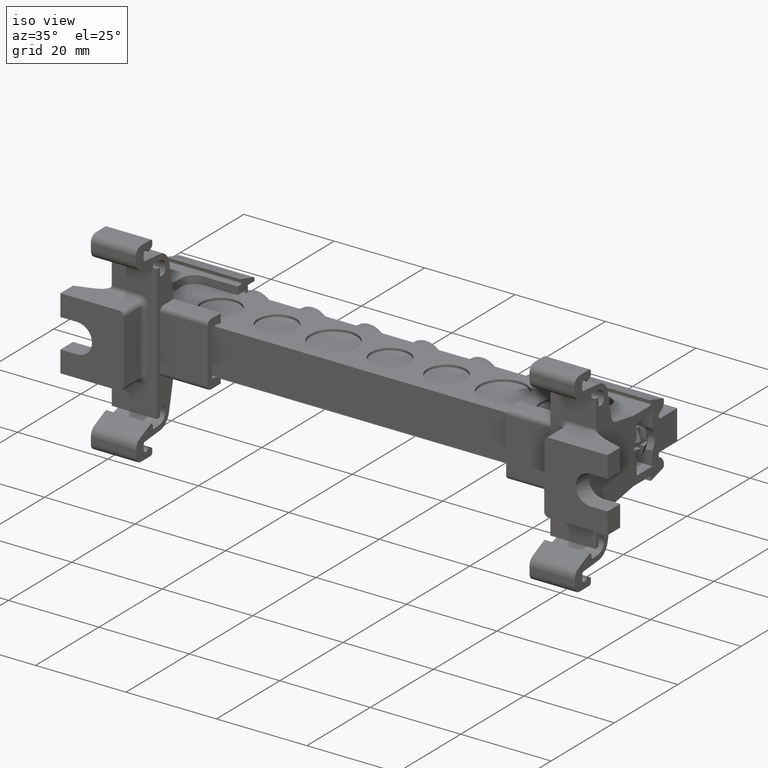
[diagram: clean part render]
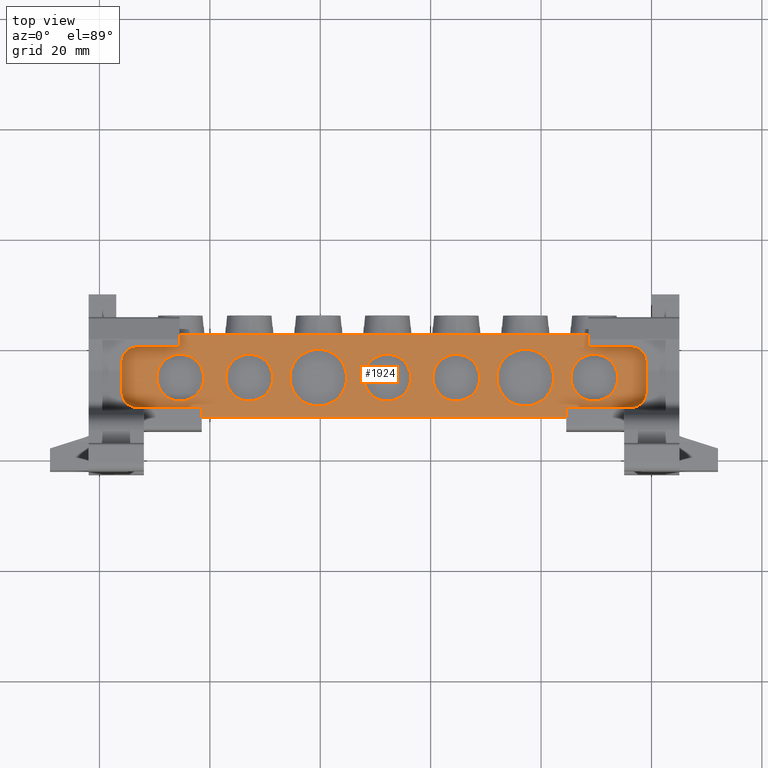
[diagram: tour spotlight — one face highlighted and labeled with its STEP entity id]
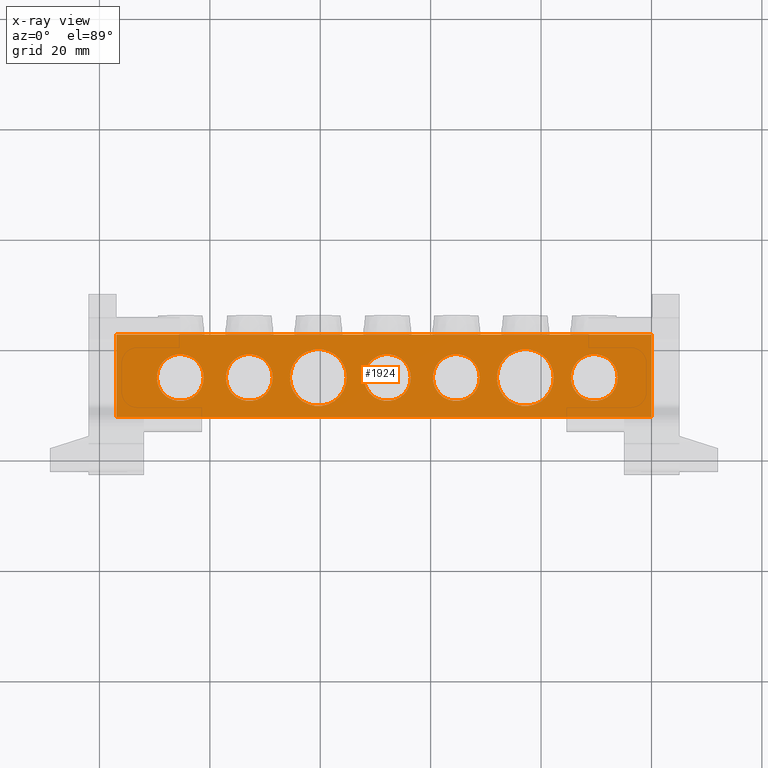
[diagram: x-ray of the same camera — body ghosted, this tour face saturated]
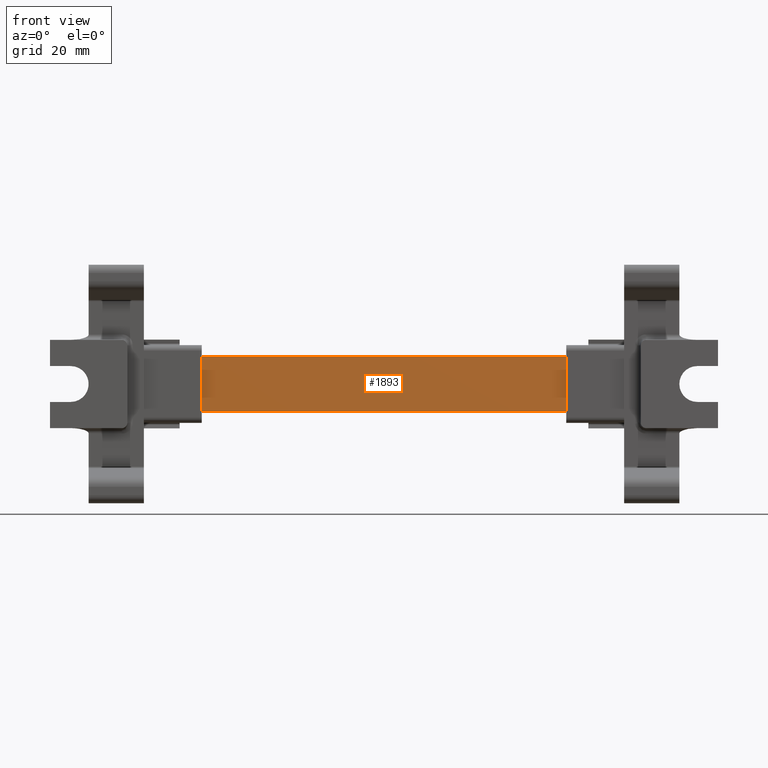
[diagram: tour spotlight — one face highlighted and labeled with its STEP entity id]
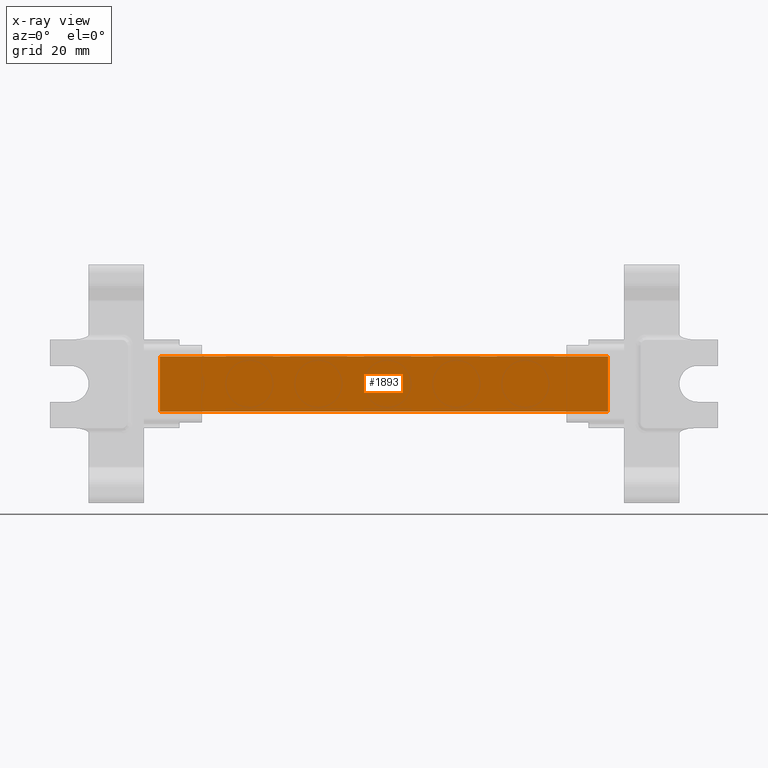
[diagram: x-ray of the same camera — body ghosted, this tour face saturated]
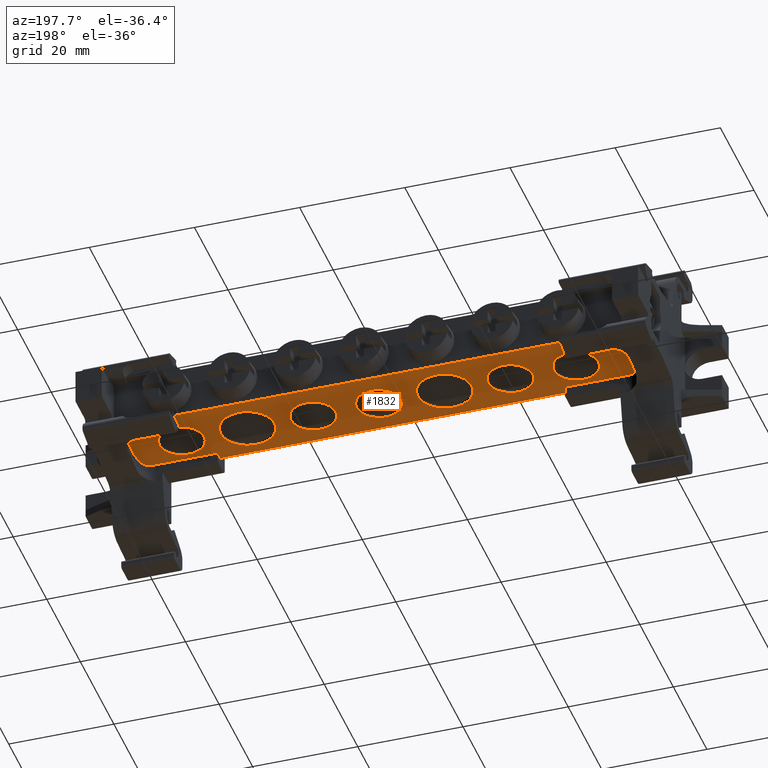
[diagram: tour spotlight — one face highlighted and labeled with its STEP entity id]
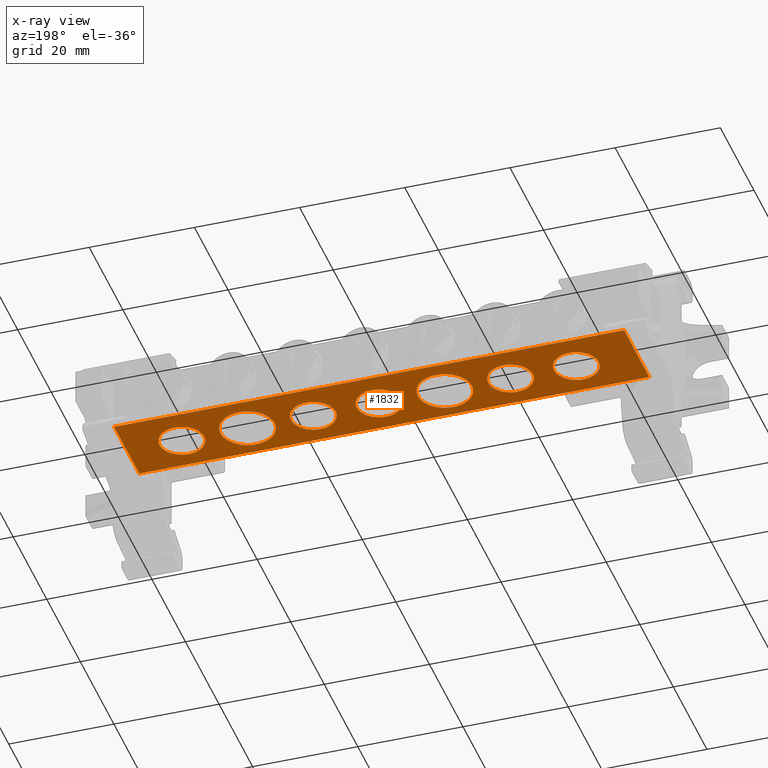
[diagram: x-ray of the same camera — body ghosted, this tour face saturated]
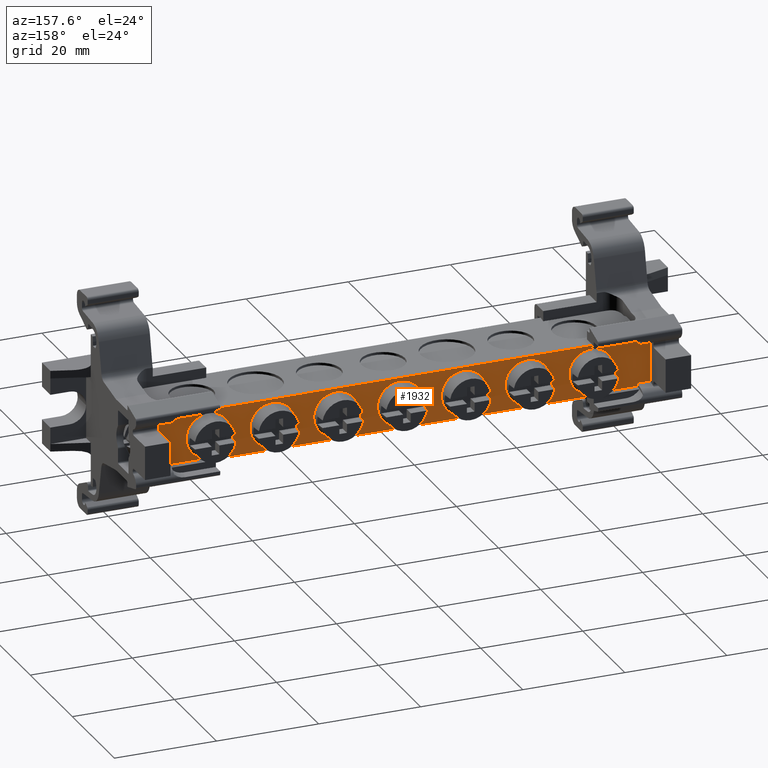
[diagram: tour spotlight — one face highlighted and labeled with its STEP entity id]
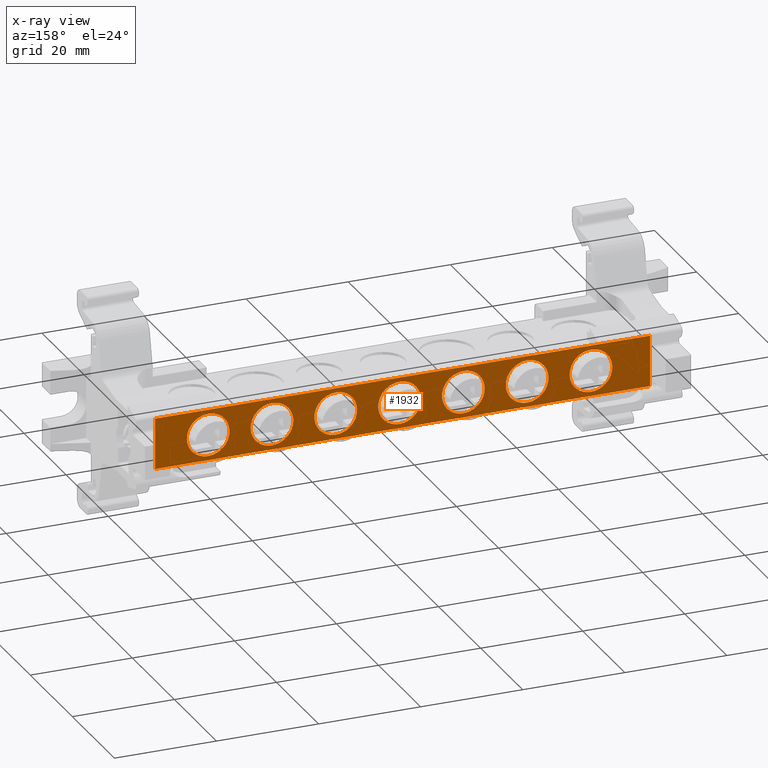
[diagram: x-ray of the same camera — body ghosted, this tour face saturated]
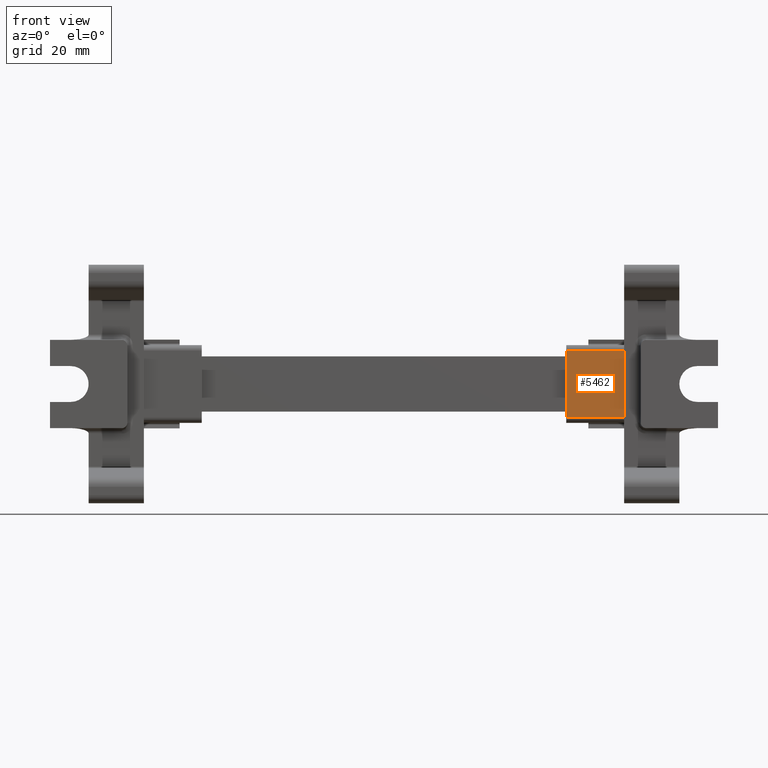
[diagram: tour spotlight — one face highlighted and labeled with its STEP entity id]
A machine part: a face-by-face anatomy tour. The part has 593 B-rep faces; the first image is the clean iso view, then the 5 largest visible faces are spotlighted one at a time (largest first), each with its STEP entity span.

Face 1 — top view, entity #1924. An x-ray twin of the same camera follows (body ghosted, this face saturated) — the face is partly hidden behind the body. In plain terms, the highlighted planar face has unit normal (0, 0, -1).
Definition (entity closure, byte-faithful):
#530 = AXIS2_PLACEMENT_3D ( 'NONE', #17205, #17223, #17226 ) ;
#535 = CIRCLE ( 'NONE', #530, 4.249999999999996400 ) ;
#565 = AXIS2_PLACEMENT_3D ( 'NONE', #5902, #5871, #5876 ) ;
#573 = AXIS2_PLACEMENT_3D ( 'NONE', #17319, #17321, #17323 ) ;
#593 = CIRCLE ( 'NONE', #573, 4.250000000000003600 ) ;
#869 = CIRCLE ( 'NONE', #962, 4.250000000000000000 ) ;
#920 = CIRCLE ( 'NONE', #949, 4.250000000000005300 ) ;
#943 = AXIS2_PLACEMENT_3D ( 'NONE', #7358, #7361, #7363 ) ;
#949 = AXIS2_PLACEMENT_3D ( 'NONE', #7382, #7367, #7386 ) ;
#962 = AXIS2_PLACEMENT_3D ( 'NONE', #7289, #7307, #7308 ) ;
#971 = CIRCLE ( 'NONE', #943, 5.150000000000002100 ) ;
#978 = CIRCLE ( 'NONE', #982, 4.250000000000005300 ) ;
#979 = AXIS2_PLACEMENT_3D ( 'NONE', #7489, #7469, #7455 ) ;
#982 = AXIS2_PLACEMENT_3D ( 'NONE', #7543, #7550, #7557 ) ;
#1018 = CIRCLE ( 'NONE', #979, 5.149999999999995000 ) ;
#1883 = EDGE_CURVE ( 'NONE', #3220, #3293, #535, .T. ) ;
#1911 = EDGE_CURVE ( 'NONE', #3276, #3310, #593, .T. ) ;
#1924 = ADVANCED_FACE ( 'NONE', ( #5914, #5883, #5879, #5892, #5899, #5887, #5869, #5917 ), #5915, .F. ) ;
#2205 = EDGE_CURVE ( 'NONE', #3302, #3261, #869, .T. ) ;
#2226 = EDGE_CURVE ( 'NONE', #3237, #3254, #971, .T. ) ;
#2234 = EDGE_CURVE ( 'NONE', #3336, #3306, #920, .T. ) ;
#2263 = EDGE_CURVE ( 'NONE', #3305, #3222, #1018, .T. ) ;
#2286 = EDGE_CURVE ( 'NONE', #3332, #3339, #978, .T. ) ;
#2462 = ORIENTED_EDGE ( 'NONE', *, *, #16133, .F. ) ;
#2481 = ORIENTED_EDGE ( 'NONE', *, *, #2234, .F. ) ;
#3042 = VERTEX_POINT ( 'NONE', #8357 ) ;
#3158 = VERTEX_POINT ( 'NONE', #8526 ) ;
#3205 = VERTEX_POINT ( 'NONE', #8595 ) ;
#3206 = VERTEX_POINT ( 'NONE', #8553 ) ;
#3209 = VERTEX_POINT ( 'NONE', #8577 ) ;
#3220 = VERTEX_POINT ( 'NONE', #8557 ) ;
#3222 = VERTEX_POINT ( 'NONE', #8604 ) ;
#3225 = VERTEX_POINT ( 'NONE', #8558 ) ;
#3230 = VERTEX_POINT ( 'NONE', #8596 ) ;
#3232 = VERTEX_POINT ( 'NONE', #8597 ) ;
#3237 = VERTEX_POINT ( 'NONE', #8608 ) ;
#3242 = VERTEX_POINT ( 'NONE', #8585 ) ;
#3254 = VERTEX_POINT ( 'NONE', #8660 ) ;
#3261 = VERTEX_POINT ( 'NONE', #8673 ) ;
#3272 = VERTEX_POINT ( 'NONE', #8640 ) ;
#3276 = VERTEX_POINT ( 'NONE', #8663 ) ;
#3293 = VERTEX_POINT ( 'NONE', #8613 ) ;
#3302 = VERTEX_POINT ( 'NONE', #8626 ) ;
#3305 = VERTEX_POINT ( 'NONE', #8629 ) ;
#3306 = VERTEX_POINT ( 'NONE', #8631 ) ;
#3310 = VERTEX_POINT ( 'NONE', #8654 ) ;
#3332 = VERTEX_POINT ( 'NONE', #8701 ) ;
#3336 = VERTEX_POINT ( 'NONE', #8677 ) ;
#3339 = VERTEX_POINT ( 'NONE', #8734 ) ;
#3927 = EDGE_LOOP ( 'NONE', ( #18561, #17509 ) ) ;
#3932 = EDGE_LOOP ( 'NONE', ( #12807, #18513 ) ) ;
#3934 = EDGE_LOOP ( 'NONE', ( #18544, #18545, #12721, #2462, #17508, #18524, #18547, #12772, #17513, #18533 ) ) ;
#3946 = EDGE_LOOP ( 'NONE', ( #12793, #18529 ) ) ;
#3957 = EDGE_LOOP ( 'NONE', ( #17514, #12774 ) ) ;
#3971 = EDGE_LOOP ( 'NONE', ( #18546, #2481 ) ) ;
#3995 = EDGE_LOOP ( 'NONE', ( #15152, #17507 ) ) ;
#4027 = EDGE_LOOP ( 'NONE', ( #18525, #12801 ) ) ;
#5869 = FACE_BOUND ( 'NONE', #3971, .T. ) ;
#5871 = DIRECTION ( 'NONE',  ( 0.0000000000000000000, 0.0000000000000000000, -1.000000000000000000 ) ) ;
#5876 = DIRECTION ( 'NONE',  ( -1.000000000000000000, 0.0000000000000000000, -0.0000000000000000000 ) ) ;
#5879 = FACE_BOUND ( 'NONE', #3927, .T. ) ;
#5883 = FACE_BOUND ( 'NONE', #3957, .T. ) ;
#5887 = FACE_BOUND ( 'NONE', #3995, .T. ) ;
#5892 = FACE_BOUND ( 'NONE', #3946, .T. ) ;
#5899 = FACE_BOUND ( 'NONE', #4027, .T. ) ;
#5902 = CARTESIAN_POINT ( 'NONE',  ( -56.95269769582441200, 62.41882648292838800, 43.07764998369307800 ) ) ;
#5914 = FACE_OUTER_BOUND ( 'NONE', #3934, .T. ) ;
#5915 = PLANE ( 'NONE',  #565 ) ;
#5917 = FACE_BOUND ( 'NONE', #3932, .T. ) ;
#7289 = CARTESIAN_POINT ( 'NONE',  ( 29.64730230417559300, 54.61882648292838400, 43.07764998369307800 ) ) ;
#7307 = DIRECTION ( 'NONE',  ( 0.0000000000000000000, 0.0000000000000000000, 1.000000000000000000 ) ) ;
#7308 = DIRECTION ( 'NONE',  ( 1.000000000000000000, 0.0000000000000000000, 0.0000000000000000000 ) ) ;
#7358 = CARTESIAN_POINT ( 'NONE',  ( -20.35269769582440700, 54.61882648292838400, 43.07764998369307800 ) ) ;
#7361 = DIRECTION ( 'NONE',  ( 0.0000000000000000000, 0.0000000000000000000, 1.000000000000000000 ) ) ;
#7363 = DIRECTION ( 'NONE',  ( 1.000000000000000000, 0.0000000000000000000, 0.0000000000000000000 ) ) ;
#7367 = DIRECTION ( 'NONE',  ( 0.0000000000000000000, 0.0000000000000000000, 1.000000000000000000 ) ) ;
#7382 = CARTESIAN_POINT ( 'NONE',  ( 4.647302304175593000, 54.61882648292838400, 43.07764998369307800 ) ) ;
#7386 = DIRECTION ( 'NONE',  ( 1.000000000000000000, 0.0000000000000000000, 0.0000000000000000000 ) ) ;
#7455 = DIRECTION ( 'NONE',  ( 1.000000000000000000, 0.0000000000000000000, 0.0000000000000000000 ) ) ;
#7469 = DIRECTION ( 'NONE',  ( 0.0000000000000000000, 0.0000000000000000000, 1.000000000000000000 ) ) ;
#7489 = CARTESIAN_POINT ( 'NONE',  ( 17.14730230417558900, 54.61882648292838400, 43.07764998369307800 ) ) ;
#7543 = CARTESIAN_POINT ( 'NONE',  ( -7.852697695824403500, 54.61882648292838400, 43.07764998369307800 ) ) ;
#7550 = DIRECTION ( 'NONE',  ( 0.0000000000000000000, 0.0000000000000000000, 1.000000000000000000 ) ) ;
#7557 = DIRECTION ( 'NONE',  ( 1.000000000000000000, 0.0000000000000000000, 0.0000000000000000000 ) ) ;
#8357 = CARTESIAN_POINT ( 'NONE',  ( -56.95269769582426300, 56.91882648293354000, 43.07764998369307800 ) ) ;
#8526 = CARTESIAN_POINT ( 'NONE',  ( -49.05269769582422200, 47.41882648292877900, 43.07764998369307800 ) ) ;
#8553 = CARTESIAN_POINT ( 'NONE',  ( 40.04730230417575900, 61.91882648292984500, 43.07764998369307800 ) ) ;
#8557 = CARTESIAN_POINT ( 'NONE',  ( -49.60269769582440300, 54.61882648292838400, 43.07764998369307800 ) ) ;
#8558 = CARTESIAN_POINT ( 'NONE',  ( 40.04730230417595000, 62.41882648292838800, 43.07764998369307800 ) ) ;
#8577 = CARTESIAN_POINT ( 'NONE',  ( -56.95269769582420600, 61.91882648293061900, 43.07764998369307800 ) ) ;
#8585 = CARTESIAN_POINT ( 'NONE',  ( -56.95269769582419900, 62.41882648292838800, 43.07764998369307800 ) ) ;
#8595 = CARTESIAN_POINT ( 'NONE',  ( 40.04730230417559500, 56.91882648293275800, 43.07764998369307800 ) ) ;
#8596 = CARTESIAN_POINT ( 'NONE',  ( 32.14730230417598000, 47.41882648292870100, 43.07764998369307800 ) ) ;
#8597 = CARTESIAN_POINT ( 'NONE',  ( 40.04730230417576600, 47.41882648293088900, 43.07764998369307800 ) ) ;
#8604 = CARTESIAN_POINT ( 'NONE',  ( 22.29730230417558400, 54.61882648292838400, 43.07764998369307800 ) ) ;
#8608 = CARTESIAN_POINT ( 'NONE',  ( -25.50269769582440900, 54.61882648292838400, 43.07764998369307800 ) ) ;
#8613 = CARTESIAN_POINT ( 'NONE',  ( -41.10269769582441100, 54.61882648292838400, 43.07764998369307800 ) ) ;
#8626 = CARTESIAN_POINT ( 'NONE',  ( 25.39730230417558600, 54.61882648292838400, 43.07764998369307800 ) ) ;
#8629 = CARTESIAN_POINT ( 'NONE',  ( 11.99730230417559600, 54.61882648292838400, 43.07764998369307800 ) ) ;
#8631 = CARTESIAN_POINT ( 'NONE',  ( 8.897302304175598300, 54.61882648292838400, 43.07764998369307800 ) ) ;
#8640 = CARTESIAN_POINT ( 'NONE',  ( -56.95269769582410600, 47.41882648293113100, 43.07764998369307800 ) ) ;
#8654 = CARTESIAN_POINT ( 'NONE',  ( -28.60269769582440700, 54.61882648292838400, 43.07764998369307800 ) ) ;
#8660 = CARTESIAN_POINT ( 'NONE',  ( -15.20269769582440700, 54.61882648292838400, 43.07764998369307800 ) ) ;
#8663 = CARTESIAN_POINT ( 'NONE',  ( -37.10269769582441800, 54.61882648292838400, 43.07764998369307800 ) ) ;
#8673 = CARTESIAN_POINT ( 'NONE',  ( 33.89730230417558900, 54.61882648292838400, 43.07764998369307800 ) ) ;
#8677 = CARTESIAN_POINT ( 'NONE',  ( 0.3973023041755879300, 54.61882648292838400, 43.07764998369307800 ) ) ;
#8701 = CARTESIAN_POINT ( 'NONE',  ( -12.10269769582440900, 54.61882648292838400, 43.07764998369307800 ) ) ;
#8734 = CARTESIAN_POINT ( 'NONE',  ( -3.602697695824398100, 54.61882648292838400, 43.07764998369307800 ) ) ;
#12721 = ORIENTED_EDGE ( 'NONE', *, *, #16091, .F. ) ;
#12772 = ORIENTED_EDGE ( 'NONE', *, *, #16137, .F. ) ;
#12774 = ORIENTED_EDGE ( 'NONE', *, *, #1883, .F. ) ;
#12773 = DIRECTION ( 'NONE',  ( 0.0000000000000000000, 0.0000000000000000000, 1.000000000000000000 ) ) ;
#12793 = ORIENTED_EDGE ( 'NONE', *, *, #16148, .F. ) ;
#12801 = ORIENTED_EDGE ( 'NONE', *, *, #2205, .F. ) ;
#12804 = DIRECTION ( 'NONE',  ( 1.000000000000000000, 0.0000000000000000000, 0.0000000000000000000 ) ) ;
#12807 = ORIENTED_EDGE ( 'NONE', *, *, #16070, .F. ) ;
#12957 = DIRECTION ( 'NONE',  ( 1.000000000000000000, 0.0000000000000000000, 0.0000000000000000000 ) ) ;
#12969 = CARTESIAN_POINT ( 'NONE',  ( -32.85269769582441100, 54.61882648292838400, 43.07764998369307800 ) ) ;
#12979 = DIRECTION ( 'NONE',  ( 0.0000000000000000000, 0.0000000000000000000, 1.000000000000000000 ) ) ;
#13002 = LINE ( 'NONE', #13036, #19298 ) ;
#13005 = DIRECTION ( 'NONE',  ( 1.000000000000000000, 0.0000000000000000000, 0.0000000000000000000 ) ) ;
#13009 = DIRECTION ( 'NONE',  ( 0.0000000000000000000, 0.0000000000000000000, 1.000000000000000000 ) ) ;
#13016 = DIRECTION ( 'NONE',  ( 7.897574987183420400E-015, 1.000000000000000000, 0.0000000000000000000 ) ) ;
#13024 = CARTESIAN_POINT ( 'NONE',  ( -7.852697695824403500, 54.61882648292838400, 43.07764998369307800 ) ) ;
#13036 = CARTESIAN_POINT ( 'NONE',  ( -56.95269769582391500, 70.57882648293299600, 43.07764998369307800 ) ) ;
#13106 = DIRECTION ( 'NONE',  ( -1.000000000000000000, 0.0000000000000000000, -0.0000000000000000000 ) ) ;
#13107 = LINE ( 'NONE', #13144, #19316 ) ;
#13135 = LINE ( 'NONE', #13146, #19277 ) ;
#13141 = DIRECTION ( 'NONE',  ( -7.897574987183420400E-015, -1.000000000000000000, 0.0000000000000000000 ) ) ;
#13144 = CARTESIAN_POINT ( 'NONE',  ( -56.95269769582441200, 47.41882648292838800, 43.07764998369307800 ) ) ;
#13146 = CARTESIAN_POINT ( 'NONE',  ( 40.04730230417600700, 70.57882648293222900, 43.07764998369307800 ) ) ;
#13150 = DIRECTION ( 'NONE',  ( 1.000000000000000000, 0.0000000000000000000, 0.0000000000000000000 ) ) ;
#13153 = CARTESIAN_POINT ( 'NONE',  ( 40.04730230417558800, 62.41882648292838800, 43.07764998369307800 ) ) ;
#13155 = DIRECTION ( 'NONE',  ( -0.0000000000000000000, -1.000000000000000000, -0.0000000000000000000 ) ) ;
#13158 = CARTESIAN_POINT ( 'NONE',  ( -56.95269769582441200, 47.41882648293088900, 43.07764998369307800 ) ) ;
#13160 = LINE ( 'NONE', #13153, #19304 ) ;
#13161 = CARTESIAN_POINT ( 'NONE',  ( 40.04730230417558800, 62.41882648292838800, 43.07764998369307800 ) ) ;
#13162 = DIRECTION ( 'NONE',  ( 0.0000000000000000000, 1.000000000000000000, 0.0000000000000000000 ) ) ;
#13163 = LINE ( 'NONE', #13161, #19315 ) ;
#13168 = CARTESIAN_POINT ( 'NONE',  ( -45.35269769582441100, 54.61882648292838400, 43.07764998369307800 ) ) ;
#13169 = CARTESIAN_POINT ( 'NONE',  ( -56.95269769582441200, 62.41882648292838800, 43.07764998369307800 ) ) ;
#13172 = CARTESIAN_POINT ( 'NONE',  ( 17.14730230417558900, 54.61882648292838400, 43.07764998369307800 ) ) ;
#13173 = DIRECTION ( 'NONE',  ( 0.0000000000000000000, 0.0000000000000000000, 1.000000000000000000 ) ) ;
#13174 = DIRECTION ( 'NONE',  ( 0.0000000000000000000, 0.0000000000000000000, 1.000000000000000000 ) ) ;
#13176 = DIRECTION ( 'NONE',  ( 1.000000000000000000, 0.0000000000000000000, 0.0000000000000000000 ) ) ;
#13180 = LINE ( 'NONE', #13158, #19365 ) ;
#13183 = DIRECTION ( 'NONE',  ( -0.0000000000000000000, -1.000000000000000000, -0.0000000000000000000 ) ) ;
#13190 = LINE ( 'NONE', #13169, #19294 ) ;
#13193 = DIRECTION ( 'NONE',  ( -1.000000000000000000, 0.0000000000000000000, -0.0000000000000000000 ) ) ;
#13197 = CARTESIAN_POINT ( 'NONE',  ( 4.647302304175593000, 54.61882648292838400, 43.07764998369307800 ) ) ;
#13215 = DIRECTION ( 'NONE',  ( 1.000000000000000000, 0.0000000000000000000, 0.0000000000000000000 ) ) ;
#13222 = DIRECTION ( 'NONE',  ( 0.0000000000000000000, 0.0000000000000000000, 1.000000000000000000 ) ) ;
#13223 = CARTESIAN_POINT ( 'NONE',  ( 29.64730230417559300, 54.61882648292838400, 43.07764998369307800 ) ) ;
#13239 = LINE ( 'NONE', #13246, #19360 ) ;
#13246 = CARTESIAN_POINT ( 'NONE',  ( -56.95269769582441200, 62.41882648292838800, 43.07764998369307800 ) ) ;
#13258 = LINE ( 'NONE', #13266, #19333 ) ;
#13266 = CARTESIAN_POINT ( 'NONE',  ( -56.95269769582441200, 47.41882648292838800, 43.07764998369307800 ) ) ;
#13269 = DIRECTION ( 'NONE',  ( -1.000000000000000000, 0.0000000000000000000, -0.0000000000000000000 ) ) ;
#13272 = LINE ( 'NONE', #13309, #19376 ) ;
#13283 = DIRECTION ( 'NONE',  ( 1.000000000000000000, -0.0000000000000000000, 0.0000000000000000000 ) ) ;
#13305 = DIRECTION ( 'NONE',  ( 1.000000000000000000, 0.0000000000000000000, 0.0000000000000000000 ) ) ;
#13309 = CARTESIAN_POINT ( 'NONE',  ( -56.95269769582410600, 62.41882648292838800, 43.07764998369307800 ) ) ;
#13315 = CARTESIAN_POINT ( 'NONE',  ( -20.35269769582440700, 54.61882648292838400, 43.07764998369307800 ) ) ;
#13316 = DIRECTION ( 'NONE',  ( 0.0000000000000000000, 0.0000000000000000000, 1.000000000000000000 ) ) ;
#13329 = DIRECTION ( 'NONE',  ( 0.0000000000000000000, 1.000000000000000000, 0.0000000000000000000 ) ) ;
#15152 = ORIENTED_EDGE ( 'NONE', *, *, #16107, .F. ) ;
#16066 = EDGE_CURVE ( 'NONE', #3310, #3276, #19231, .T. ) ;
#16070 = EDGE_CURVE ( 'NONE', #3339, #3332, #19251, .T. ) ;
#16072 = EDGE_CURVE ( 'NONE', #3209, #3242, #13002, .T. ) ;
#16091 = EDGE_CURVE ( 'NONE', #3225, #3206, #13135, .T. ) ;
#16095 = EDGE_CURVE ( 'NONE', #3230, #3158, #13107, .T. ) ;
#16101 = EDGE_CURVE ( 'NONE', #3293, #3220, #19289, .T. ) ;
#16107 = EDGE_CURVE ( 'NONE', #3222, #3305, #19321, .T. ) ;
#16108 = EDGE_CURVE ( 'NONE', #3205, #3232, #13160, .T. ) ;
#16110 = EDGE_CURVE ( 'NONE', #3206, #3205, #13163, .T. ) ;
#16111 = EDGE_CURVE ( 'NONE', #3042, #3209, #13190, .T. ) ;
#16115 = EDGE_CURVE ( 'NONE', #3232, #3230, #13180, .T. ) ;
#16122 = EDGE_CURVE ( 'NONE', #3306, #3336, #19354, .T. ) ;
#16133 = EDGE_CURVE ( 'NONE', #3242, #3225, #13239, .T. ) ;
#16137 = EDGE_CURVE ( 'NONE', #3158, #3272, #13258, .T. ) ;
#16138 = EDGE_CURVE ( 'NONE', #3272, #3042, #13272, .T. ) ;
#16148 = EDGE_CURVE ( 'NONE', #3254, #3237, #19335, .T. ) ;
#16154 = EDGE_CURVE ( 'NONE', #3261, #3302, #19348, .T. ) ;
#17205 = CARTESIAN_POINT ( 'NONE',  ( -45.35269769582441100, 54.61882648292838400, 43.07764998369307800 ) ) ;
#17223 = DIRECTION ( 'NONE',  ( 0.0000000000000000000, 0.0000000000000000000, 1.000000000000000000 ) ) ;
#17226 = DIRECTION ( 'NONE',  ( 1.000000000000000000, 0.0000000000000000000, 0.0000000000000000000 ) ) ;
#17319 = CARTESIAN_POINT ( 'NONE',  ( -32.85269769582441100, 54.61882648292838400, 43.07764998369307800 ) ) ;
#17321 = DIRECTION ( 'NONE',  ( 0.0000000000000000000, 0.0000000000000000000, 1.000000000000000000 ) ) ;
#17323 = DIRECTION ( 'NONE',  ( 1.000000000000000000, 0.0000000000000000000, 0.0000000000000000000 ) ) ;
#17507 = ORIENTED_EDGE ( 'NONE', *, *, #2263, .F. ) ;
#17508 = ORIENTED_EDGE ( 'NONE', *, *, #16072, .F. ) ;
#17509 = ORIENTED_EDGE ( 'NONE', *, *, #1911, .F. ) ;
#17513 = ORIENTED_EDGE ( 'NONE', *, *, #16095, .F. ) ;
#17514 = ORIENTED_EDGE ( 'NONE', *, *, #16101, .F. ) ;
#18513 = ORIENTED_EDGE ( 'NONE', *, *, #2286, .F. ) ;
#18524 = ORIENTED_EDGE ( 'NONE', *, *, #16111, .F. ) ;
#18525 = ORIENTED_EDGE ( 'NONE', *, *, #16154, .F. ) ;
#18529 = ORIENTED_EDGE ( 'NONE', *, *, #2226, .F. ) ;
#18533 = ORIENTED_EDGE ( 'NONE', *, *, #16115, .F. ) ;
#18544 = ORIENTED_EDGE ( 'NONE', *, *, #16108, .F. ) ;
#18545 = ORIENTED_EDGE ( 'NONE', *, *, #16110, .F. ) ;
#18546 = ORIENTED_EDGE ( 'NONE', *, *, #16122, .F. ) ;
#18547 = ORIENTED_EDGE ( 'NONE', *, *, #16138, .F. ) ;
#18561 = ORIENTED_EDGE ( 'NONE', *, *, #16066, .F. ) ;
#19231 = CIRCLE ( 'NONE', #19269, 4.250000000000003600 ) ;
#19251 = CIRCLE ( 'NONE', #19297, 4.250000000000005300 ) ;
#19269 = AXIS2_PLACEMENT_3D ( 'NONE', #12969, #12979, #12957 ) ;
#19277 = VECTOR ( 'NONE', #13141, 1000.000000000000000 ) ;
#19278 = AXIS2_PLACEMENT_3D ( 'NONE', #13172, #13174, #13150 ) ;
#19289 = CIRCLE ( 'NONE', #19293, 4.249999999999996400 ) ;
#19293 = AXIS2_PLACEMENT_3D ( 'NONE', #13168, #13173, #13176 ) ;
#19294 = VECTOR ( 'NONE', #13162, 1000.000000000000000 ) ;
#19297 = AXIS2_PLACEMENT_3D ( 'NONE', #13024, #13009, #13005 ) ;
#19298 = VECTOR ( 'NONE', #13016, 1000.000000000000000 ) ;
#19304 = VECTOR ( 'NONE', #13155, 1000.000000000000000 ) ;
#19315 = VECTOR ( 'NONE', #13183, 1000.000000000000000 ) ;
#19316 = VECTOR ( 'NONE', #13106, 1000.000000000000000 ) ;
#19321 = CIRCLE ( 'NONE', #19278, 5.149999999999995000 ) ;
#19322 = AXIS2_PLACEMENT_3D ( 'NONE', #13315, #13316, #13305 ) ;
#19333 = VECTOR ( 'NONE', #13269, 1000.000000000000000 ) ;
#19335 = CIRCLE ( 'NONE', #19322, 5.150000000000002100 ) ;
#19342 = AXIS2_PLACEMENT_3D ( 'NONE', #13197, #13222, #13215 ) ;
#19348 = CIRCLE ( 'NONE', #19364, 4.250000000000000000 ) ;
#19354 = CIRCLE ( 'NONE', #19342, 4.250000000000005300 ) ;
#19360 = VECTOR ( 'NONE', #13283, 1000.000000000000000 ) ;
#19364 = AXIS2_PLACEMENT_3D ( 'NONE', #13223, #12773, #12804 ) ;
#19365 = VECTOR ( 'NONE', #13193, 1000.000000000000000 ) ;
#19376 = VECTOR ( 'NONE', #13329, 1000.000000000000000 ) ;

Face 2 — front view, entity #1893. An x-ray twin of the same camera follows (body ghosted, this face saturated) — the face is partly hidden behind the body. In plain terms, the highlighted planar face has unit normal (0, 1, 0).
Definition (entity closure, byte-faithful):
#128 = ORIENTED_EDGE ( 'NONE', *, *, #16155, .F. ) ;
#140 = ORIENTED_EDGE ( 'NONE', *, *, #16095, .T. ) ;
#163 = ORIENTED_EDGE ( 'NONE', *, *, #15995, .F. ) ;
#544 = AXIS2_PLACEMENT_3D ( 'NONE', #17260, #17296, #17255 ) ;
#1893 = ADVANCED_FACE ( 'NONE', ( #17272 ), #17289, .F. ) ;
#3158 = VERTEX_POINT ( 'NONE', #8526 ) ;
#3190 = VERTEX_POINT ( 'NONE', #8552 ) ;
#3230 = VERTEX_POINT ( 'NONE', #8596 ) ;
#3257 = VERTEX_POINT ( 'NONE', #8611 ) ;
#3948 = EDGE_LOOP ( 'NONE', ( #140, #18534, #128, #163 ) ) ;
#8526 = CARTESIAN_POINT ( 'NONE',  ( -49.05269769582422200, 47.41882648292877900, 43.07764998369307800 ) ) ;
#8552 = CARTESIAN_POINT ( 'NONE',  ( 32.14730230417600900, 47.41882648292963900, 33.07764998369310000 ) ) ;
#8596 = CARTESIAN_POINT ( 'NONE',  ( 32.14730230417598000, 47.41882648292870100, 43.07764998369307800 ) ) ;
#8611 = CARTESIAN_POINT ( 'NONE',  ( -49.05269769582420700, 47.41882648293140100, 33.07764998369308500 ) ) ;
#8994 = DIRECTION ( 'NONE',  ( -1.000000000000000000, -0.0000000000000000000, 0.0000000000000000000 ) ) ;
#13106 = DIRECTION ( 'NONE',  ( -1.000000000000000000, 0.0000000000000000000, -0.0000000000000000000 ) ) ;
#13107 = LINE ( 'NONE', #13144, #19316 ) ;
#13144 = CARTESIAN_POINT ( 'NONE',  ( -56.95269769582441200, 47.41882648292838800, 43.07764998369307800 ) ) ;
#13293 = LINE ( 'NONE', #13301, #19329 ) ;
#13301 = CARTESIAN_POINT ( 'NONE',  ( -56.95269769582441200, 47.41882648292838800, 33.07764998369308500 ) ) ;
#13755 = LINE ( 'NONE', #13758, #19635 ) ;
#13758 = CARTESIAN_POINT ( 'NONE',  ( 32.14730230417601600, 47.41882648292838800, 43.07764998369307800 ) ) ;
#13759 = DIRECTION ( 'NONE',  ( -0.0000000000000000000, 0.0000000000000000000, -1.000000000000000000 ) ) ;
#13803 = CARTESIAN_POINT ( 'NONE',  ( -49.05269769582420000, 47.41882648292838800, 43.07764998369307800 ) ) ;
#13820 = LINE ( 'NONE', #13803, #19657 ) ;
#13832 = DIRECTION ( 'NONE',  ( 0.0000000000000000000, -0.0000000000000000000, 1.000000000000000000 ) ) ;
#15995 = EDGE_CURVE ( 'NONE', #3230, #3190, #13755, .T. ) ;
#16015 = EDGE_CURVE ( 'NONE', #3257, #3158, #13820, .T. ) ;
#16095 = EDGE_CURVE ( 'NONE', #3230, #3158, #13107, .T. ) ;
#16155 = EDGE_CURVE ( 'NONE', #3190, #3257, #13293, .T. ) ;
#17255 = DIRECTION ( 'NONE',  ( 0.0000000000000000000, -0.0000000000000000000, 1.000000000000000000 ) ) ;
#17260 = CARTESIAN_POINT ( 'NONE',  ( -56.95269769582441200, 47.41882648292838800, 43.07764998369307800 ) ) ;
#17272 = FACE_OUTER_BOUND ( 'NONE', #3948, .T. ) ;
#17289 = PLANE ( 'NONE',  #544 ) ;
#17296 = DIRECTION ( 'NONE',  ( 0.0000000000000000000, 1.000000000000000000, 0.0000000000000000000 ) ) ;
#18534 = ORIENTED_EDGE ( 'NONE', *, *, #16015, .F. ) ;
#19316 = VECTOR ( 'NONE', #13106, 1000.000000000000000 ) ;
#19329 = VECTOR ( 'NONE', #8994, 1000.000000000000000 ) ;
#19635 = VECTOR ( 'NONE', #13759, 1000.000000000000000 ) ;
#19657 = VECTOR ( 'NONE', #13832, 1000.000000000000000 ) ;

Face 3 — auxiliary view, entity #1832. An x-ray twin of the same camera follows (body ghosted, this face saturated) — the face is partly hidden behind the body. In plain terms, the highlighted planar face has unit normal (0, 0, -1).
Definition (entity closure, byte-faithful):
#2 = ORIENTED_EDGE ( 'NONE', *, *, #16056, .T. ) ;
#3 = ORIENTED_EDGE ( 'NONE', *, *, #16055, .T. ) ;
#4 = ORIENTED_EDGE ( 'NONE', *, *, #2270, .T. ) ;
#10 = ORIENTED_EDGE ( 'NONE', *, *, #2299, .T. ) ;
#14 = ORIENTED_EDGE ( 'NONE', *, *, #16081, .T. ) ;
#15 = ORIENTED_EDGE ( 'NONE', *, *, #16155, .T. ) ;
#17 = ORIENTED_EDGE ( 'NONE', *, *, #2230, .T. ) ;
#19 = ORIENTED_EDGE ( 'NONE', *, *, #16059, .T. ) ;
#22 = ORIENTED_EDGE ( 'NONE', *, *, #16010, .T. ) ;
#28 = ORIENTED_EDGE ( 'NONE', *, *, #16024, .T. ) ;
#37 = ORIENTED_EDGE ( 'NONE', *, *, #2271, .T. ) ;
#41 = ORIENTED_EDGE ( 'NONE', *, *, #16045, .T. ) ;
#44 = ORIENTED_EDGE ( 'NONE', *, *, #16047, .T. ) ;
#45 = ORIENTED_EDGE ( 'NONE', *, *, #2251, .T. ) ;
#49 = ORIENTED_EDGE ( 'NONE', *, *, #16036, .T. ) ;
#54 = ORIENTED_EDGE ( 'NONE', *, *, #16058, .T. ) ;
#55 = ORIENTED_EDGE ( 'NONE', *, *, #2320, .T. ) ;
#62 = ORIENTED_EDGE ( 'NONE', *, *, #16022, .T. ) ;
#66 = ORIENTED_EDGE ( 'NONE', *, *, #16089, .T. ) ;
#70 = ORIENTED_EDGE ( 'NONE', *, *, #2314, .T. ) ;
#89 = ORIENTED_EDGE ( 'NONE', *, *, #16037, .T. ) ;
#106 = ORIENTED_EDGE ( 'NONE', *, *, #16092, .T. ) ;
#120 = ORIENTED_EDGE ( 'NONE', *, *, #16077, .T. ) ;
#176 = ORIENTED_EDGE ( 'NONE', *, *, #16090, .T. ) ;
#468 = AXIS2_PLACEMENT_3D ( 'NONE', #16950, #16958, #16959 ) ;
#942 = CIRCLE ( 'NONE', #959, 4.250000000000005300 ) ;
#959 = AXIS2_PLACEMENT_3D ( 'NONE', #7365, #7378, #7398 ) ;
#988 = AXIS2_PLACEMENT_3D ( 'NONE', #7516, #7517, #7498 ) ;
#999 = CIRCLE ( 'NONE', #1000, 5.150000000000002100 ) ;
#1000 = AXIS2_PLACEMENT_3D ( 'NONE', #7515, #7527, #7496 ) ;
#1014 = CIRCLE ( 'NONE', #1024, 4.250000000000005300 ) ;
#1024 = AXIS2_PLACEMENT_3D ( 'NONE', #7430, #7411, #7432 ) ;
#1028 = CIRCLE ( 'NONE', #988, 4.250000000000003600 ) ;
#1041 = AXIS2_PLACEMENT_3D ( 'NONE', #7637, #7647, #7657 ) ;
#1060 = CIRCLE ( 'NONE', #1041, 4.250000000000000000 ) ;
#1062 = AXIS2_PLACEMENT_3D ( 'NONE', #7576, #7610, #7613 ) ;
#1069 = CIRCLE ( 'NONE', #1080, 4.249999999999996400 ) ;
#1080 = AXIS2_PLACEMENT_3D ( 'NONE', #7623, #7639, #7651 ) ;
#1099 = CIRCLE ( 'NONE', #1062, 5.149999999999995000 ) ;
#1832 = ADVANCED_FACE ( 'NONE', ( #16882, #16883, #16894, #16900, #16923, #16889, #16887, #16898 ), #16880, .T. ) ;
#2230 = EDGE_CURVE ( 'NONE', #3343, #3314, #942, .T. ) ;
#2251 = EDGE_CURVE ( 'NONE', #3342, #3359, #1014, .T. ) ;
#2270 = EDGE_CURVE ( 'NONE', #3329, #3319, #999, .T. ) ;
#2271 = EDGE_CURVE ( 'NONE', #3406, #3392, #1028, .T. ) ;
#2299 = EDGE_CURVE ( 'NONE', #3331, #3340, #1099, .T. ) ;
#2314 = EDGE_CURVE ( 'NONE', #3334, #3358, #1060, .T. ) ;
#2320 = EDGE_CURVE ( 'NONE', #3370, #3369, #1069, .T. ) ;
#3063 = VERTEX_POINT ( 'NONE', #8434 ) ;
#3066 = VERTEX_POINT ( 'NONE', #8429 ) ;
#3090 = VERTEX_POINT ( 'NONE', #8444 ) ;
#3104 = VERTEX_POINT ( 'NONE', #8424 ) ;
#3159 = VERTEX_POINT ( 'NONE', #8513 ) ;
#3164 = VERTEX_POINT ( 'NONE', #8505 ) ;
#3190 = VERTEX_POINT ( 'NONE', #8552 ) ;
#3231 = VERTEX_POINT ( 'NONE', #8582 ) ;
#3240 = VERTEX_POINT ( 'NONE', #8588 ) ;
#3257 = VERTEX_POINT ( 'NONE', #8611 ) ;
#3314 = VERTEX_POINT ( 'NONE', #8679 ) ;
#3319 = VERTEX_POINT ( 'NONE', #8720 ) ;
#3329 = VERTEX_POINT ( 'NONE', #8698 ) ;
#3331 = VERTEX_POINT ( 'NONE', #8675 ) ;
#3334 = VERTEX_POINT ( 'NONE', #8693 ) ;
#3340 = VERTEX_POINT ( 'NONE', #8726 ) ;
#3342 = VERTEX_POINT ( 'NONE', #8689 ) ;
#3343 = VERTEX_POINT ( 'NONE', #8702 ) ;
#3358 = VERTEX_POINT ( 'NONE', #8683 ) ;
#3359 = VERTEX_POINT ( 'NONE', #8715 ) ;
#3369 = VERTEX_POINT ( 'NONE', #8706 ) ;
#3370 = VERTEX_POINT ( 'NONE', #8697 ) ;
#3392 = VERTEX_POINT ( 'NONE', #8752 ) ;
#3406 = VERTEX_POINT ( 'NONE', #8770 ) ;
#3870 = EDGE_LOOP ( 'NONE', ( #62, #4 ) ) ;
#3892 = EDGE_LOOP ( 'NONE', ( #41, #17 ) ) ;
#3895 = EDGE_LOOP ( 'NONE', ( #28, #37 ) ) ;
#3944 = EDGE_LOOP ( 'NONE', ( #3, #10 ) ) ;
#3945 = EDGE_LOOP ( 'NONE', ( #54, #55 ) ) ;
#3960 = EDGE_LOOP ( 'NONE', ( #44, #19, #14, #2, #15, #49, #22, #120, #106, #176 ) ) ;
#3965 = EDGE_LOOP ( 'NONE', ( #89, #70 ) ) ;
#3969 = EDGE_LOOP ( 'NONE', ( #66, #45 ) ) ;
#7365 = CARTESIAN_POINT ( 'NONE',  ( -7.852697695824403500, 54.61882648292838400, 33.07764998369308500 ) ) ;
#7378 = DIRECTION ( 'NONE',  ( 0.0000000000000000000, 0.0000000000000000000, 1.000000000000000000 ) ) ;
#7398 = DIRECTION ( 'NONE',  ( 1.000000000000000000, 0.0000000000000000000, 0.0000000000000000000 ) ) ;
#7411 = DIRECTION ( 'NONE',  ( 0.0000000000000000000, 0.0000000000000000000, 1.000000000000000000 ) ) ;
#7430 = CARTESIAN_POINT ( 'NONE',  ( 4.647302304175593000, 54.61882648292838400, 33.07764998369308500 ) ) ;
#7432 = DIRECTION ( 'NONE',  ( 1.000000000000000000, 0.0000000000000000000, 0.0000000000000000000 ) ) ;
#7496 = DIRECTION ( 'NONE',  ( 1.000000000000000000, 0.0000000000000000000, 0.0000000000000000000 ) ) ;
#7498 = DIRECTION ( 'NONE',  ( 1.000000000000000000, 0.0000000000000000000, 0.0000000000000000000 ) ) ;
#7515 = CARTESIAN_POINT ( 'NONE',  ( -20.35269769582440700, 54.61882648292838400, 33.07764998369308500 ) ) ;
#7516 = CARTESIAN_POINT ( 'NONE',  ( -32.85269769582441100, 54.61882648292838400, 33.07764998369308500 ) ) ;
#7517 = DIRECTION ( 'NONE',  ( 0.0000000000000000000, 0.0000000000000000000, 1.000000000000000000 ) ) ;
#7527 = DIRECTION ( 'NONE',  ( 0.0000000000000000000, 0.0000000000000000000, 1.000000000000000000 ) ) ;
#7576 = CARTESIAN_POINT ( 'NONE',  ( 17.14730230417558900, 54.61882648292838400, 33.07764998369308500 ) ) ;
#7610 = DIRECTION ( 'NONE',  ( 0.0000000000000000000, 0.0000000000000000000, 1.000000000000000000 ) ) ;
#7613 = DIRECTION ( 'NONE',  ( 1.000000000000000000, 0.0000000000000000000, 0.0000000000000000000 ) ) ;
#7623 = CARTESIAN_POINT ( 'NONE',  ( -45.35269769582441100, 54.61882648292838400, 33.07764998369308500 ) ) ;
#7637 = CARTESIAN_POINT ( 'NONE',  ( 29.64730230417559300, 54.61882648292838400, 33.07764998369308500 ) ) ;
#7639 = DIRECTION ( 'NONE',  ( 0.0000000000000000000, 0.0000000000000000000, 1.000000000000000000 ) ) ;
#7647 = DIRECTION ( 'NONE',  ( 0.0000000000000000000, 0.0000000000000000000, 1.000000000000000000 ) ) ;
#7651 = DIRECTION ( 'NONE',  ( 1.000000000000000000, 0.0000000000000000000, 0.0000000000000000000 ) ) ;
#7657 = DIRECTION ( 'NONE',  ( 1.000000000000000000, 0.0000000000000000000, 0.0000000000000000000 ) ) ;
#8424 = CARTESIAN_POINT ( 'NONE',  ( 40.04730230417567300, 56.91882648293282200, 33.07764998369309200 ) ) ;
#8429 = CARTESIAN_POINT ( 'NONE',  ( -56.95269769582433400, 56.91882648293353200, 33.07764998369308500 ) ) ;
#8434 = CARTESIAN_POINT ( 'NONE',  ( -56.95269769582441200, 61.91882648293061900, 33.07764998369308500 ) ) ;
#8444 = CARTESIAN_POINT ( 'NONE',  ( 40.04730230417569500, 61.91882648292984500, 33.07764998369308500 ) ) ;
#8505 = CARTESIAN_POINT ( 'NONE',  ( -56.95269769582406400, 47.41882648293165700, 33.07764998369308500 ) ) ;
#8513 = CARTESIAN_POINT ( 'NONE',  ( 40.04730230417578700, 47.41882648293162100, 33.07764998369310000 ) ) ;
#8552 = CARTESIAN_POINT ( 'NONE',  ( 32.14730230417600900, 47.41882648292963900, 33.07764998369310000 ) ) ;
#8582 = CARTESIAN_POINT ( 'NONE',  ( 40.04730230417598600, 62.41882648292838800, 33.07764998369308500 ) ) ;
#8588 = CARTESIAN_POINT ( 'NONE',  ( -56.95269769582417800, 62.41882648292838800, 33.07764998369308500 ) ) ;
#8611 = CARTESIAN_POINT ( 'NONE',  ( -49.05269769582420700, 47.41882648293140100, 33.07764998369308500 ) ) ;
#8675 = CARTESIAN_POINT ( 'NONE',  ( 11.99730230417559600, 54.61882648292838400, 33.07764998369308500 ) ) ;
#8679 = CARTESIAN_POINT ( 'NONE',  ( -3.602697695824398100, 54.61882648292838400, 33.07764998369308500 ) ) ;
#8683 = CARTESIAN_POINT ( 'NONE',  ( 33.89730230417558900, 54.61882648292838400, 33.07764998369308500 ) ) ;
#8689 = CARTESIAN_POINT ( 'NONE',  ( 0.3973023041755879300, 54.61882648292838400, 33.07764998369308500 ) ) ;
#8693 = CARTESIAN_POINT ( 'NONE',  ( 25.39730230417558600, 54.61882648292838400, 33.07764998369308500 ) ) ;
#8697 = CARTESIAN_POINT ( 'NONE',  ( -49.60269769582440300, 54.61882648292838400, 33.07764998369308500 ) ) ;
#8698 = CARTESIAN_POINT ( 'NONE',  ( -25.50269769582440900, 54.61882648292838400, 33.07764998369308500 ) ) ;
#8702 = CARTESIAN_POINT ( 'NONE',  ( -12.10269769582440900, 54.61882648292838400, 33.07764998369308500 ) ) ;
#8706 = CARTESIAN_POINT ( 'NONE',  ( -41.10269769582441100, 54.61882648292838400, 33.07764998369308500 ) ) ;
#8715 = CARTESIAN_POINT ( 'NONE',  ( 8.897302304175598300, 54.61882648292838400, 33.07764998369308500 ) ) ;
#8720 = CARTESIAN_POINT ( 'NONE',  ( -15.20269769582440700, 54.61882648292838400, 33.07764998369308500 ) ) ;
#8726 = CARTESIAN_POINT ( 'NONE',  ( 22.29730230417558400, 54.61882648292838400, 33.07764998369308500 ) ) ;
#8752 = CARTESIAN_POINT ( 'NONE',  ( -28.60269769582440700, 54.61882648292838400, 33.07764998369308500 ) ) ;
#8770 = CARTESIAN_POINT ( 'NONE',  ( -37.10269769582441800, 54.61882648292838400, 33.07764998369308500 ) ) ;
#8994 = DIRECTION ( 'NONE',  ( -1.000000000000000000, -0.0000000000000000000, 0.0000000000000000000 ) ) ;
#12818 = DIRECTION ( 'NONE',  ( 1.000000000000000000, 0.0000000000000000000, 0.0000000000000000000 ) ) ;
#12822 = DIRECTION ( 'NONE',  ( 1.000000000000000000, 0.0000000000000000000, 0.0000000000000000000 ) ) ;
#12828 = CARTESIAN_POINT ( 'NONE',  ( -20.35269769582440700, 54.61882648292838400, 33.07764998369308500 ) ) ;
#12837 = CARTESIAN_POINT ( 'NONE',  ( -32.85269769582441100, 54.61882648292838400, 33.07764998369308500 ) ) ;
#12854 = DIRECTION ( 'NONE',  ( 0.0000000000000000000, 0.0000000000000000000, 1.000000000000000000 ) ) ;
#12858 = DIRECTION ( 'NONE',  ( 0.0000000000000000000, 0.0000000000000000000, 1.000000000000000000 ) ) ;
#12867 = LINE ( 'NONE', #12893, #19260 ) ;
#12871 = DIRECTION ( 'NONE',  ( 1.000000000000000000, 0.0000000000000000000, 0.0000000000000000000 ) ) ;
#12893 = CARTESIAN_POINT ( 'NONE',  ( -56.95269769582441200, 47.41882648293223900, 33.07764998369308500 ) ) ;
#12894 = CARTESIAN_POINT ( 'NONE',  ( 29.64730230417559300, 54.61882648292838400, 33.07764998369308500 ) ) ;
#12901 = DIRECTION ( 'NONE',  ( -1.000000000000000000, 0.0000000000000000000, -0.0000000000000000000 ) ) ;
#12903 = DIRECTION ( 'NONE',  ( 0.0000000000000000000, 0.0000000000000000000, 1.000000000000000000 ) ) ;
#12908 = DIRECTION ( 'NONE',  ( 1.000000000000000000, 0.0000000000000000000, 0.0000000000000000000 ) ) ;
#12910 = DIRECTION ( 'NONE',  ( -1.000000000000000000, 0.0000000000000000000, -0.0000000000000000000 ) ) ;
#12915 = CARTESIAN_POINT ( 'NONE',  ( -7.852697695824403500, 54.61882648292838400, 33.07764998369308500 ) ) ;
#12919 = CARTESIAN_POINT ( 'NONE',  ( 40.04730230417599300, 62.41882648292838800, 33.07764998369308500 ) ) ;
#12922 = DIRECTION ( 'NONE',  ( 0.0000000000000000000, 0.0000000000000000000, 1.000000000000000000 ) ) ;
#12923 = LINE ( 'NONE', #12919, #19262 ) ;
#12935 = CARTESIAN_POINT ( 'NONE',  ( -56.95269769582441200, 47.41882648293088900, 33.07764998369308500 ) ) ;
#12937 = LINE ( 'NONE', #12972, #19273 ) ;
#12942 = DIRECTION ( 'NONE',  ( -0.0000000000000000000, -1.000000000000000000, -0.0000000000000000000 ) ) ;
#12944 = CARTESIAN_POINT ( 'NONE',  ( 17.14730230417558900, 54.61882648292838400, 33.07764998369308500 ) ) ;
#12945 = DIRECTION ( 'NONE',  ( 0.0000000000000000000, 0.0000000000000000000, 1.000000000000000000 ) ) ;
#12946 = DIRECTION ( 'NONE',  ( 1.000000000000000000, 0.0000000000000000000, 0.0000000000000000000 ) ) ;
#12947 = LINE ( 'NONE', #12935, #19272 ) ;
#12952 = DIRECTION ( 'NONE',  ( 0.0000000000000000000, 0.0000000000000000000, 1.000000000000000000 ) ) ;
#12968 = CARTESIAN_POINT ( 'NONE',  ( -45.35269769582441100, 54.61882648292838400, 33.07764998369308500 ) ) ;
#12971 = DIRECTION ( 'NONE',  ( 1.000000000000000000, 0.0000000000000000000, 0.0000000000000000000 ) ) ;
#12972 = CARTESIAN_POINT ( 'NONE',  ( 40.04730230417558800, 62.41882648292838800, 33.07764998369308500 ) ) ;
#12981 = DIRECTION ( 'NONE',  ( -0.0000000000000000000, -1.000000000000000000, -0.0000000000000000000 ) ) ;
#13000 = CARTESIAN_POINT ( 'NONE',  ( 40.04730230417558800, 62.41882648292838800, 33.07764998369308500 ) ) ;
#13003 = DIRECTION ( 'NONE',  ( -0.0000000000000000000, -1.000000000000000000, -0.0000000000000000000 ) ) ;
#13017 = LINE ( 'NONE', #13000, #19310 ) ;
#13021 = LINE ( 'NONE', #13035, #19299 ) ;
#13035 = CARTESIAN_POINT ( 'NONE',  ( -56.95269769582441200, 62.41882648292838800, 33.07764998369308500 ) ) ;
#13042 = DIRECTION ( 'NONE',  ( 0.0000000000000000000, 1.000000000000000000, 0.0000000000000000000 ) ) ;
#13091 = LINE ( 'NONE', #13140, #19303 ) ;
#13104 = DIRECTION ( 'NONE',  ( 0.0000000000000000000, 1.000000000000000000, 0.0000000000000000000 ) ) ;
#13116 = CARTESIAN_POINT ( 'NONE',  ( -56.95269769582441200, 62.41882648292838800, 33.07764998369308500 ) ) ;
#13129 = DIRECTION ( 'NONE',  ( 1.000000000000000000, 0.0000000000000000000, 0.0000000000000000000 ) ) ;
#13133 = DIRECTION ( 'NONE',  ( 0.0000000000000000000, 0.0000000000000000000, 1.000000000000000000 ) ) ;
#13136 = CARTESIAN_POINT ( 'NONE',  ( 4.647302304175593000, 54.61882648292838400, 33.07764998369308500 ) ) ;
#13140 = CARTESIAN_POINT ( 'NONE',  ( -56.95269769582441200, 62.41882648292838800, 33.07764998369308500 ) ) ;
#13147 = DIRECTION ( 'NONE',  ( 1.000000000000000000, 0.0000000000000000000, 0.0000000000000000000 ) ) ;
#13149 = LINE ( 'NONE', #13116, #19301 ) ;
#13293 = LINE ( 'NONE', #13301, #19329 ) ;
#13301 = CARTESIAN_POINT ( 'NONE',  ( -56.95269769582441200, 47.41882648292838800, 33.07764998369308500 ) ) ;
#13801 = LINE ( 'NONE', #13805, #19649 ) ;
#13805 = CARTESIAN_POINT ( 'NONE',  ( -56.95269769582406400, 62.41882648292838800, 33.07764998369308500 ) ) ;
#13822 = DIRECTION ( 'NONE',  ( 0.0000000000000000000, 1.000000000000000000, 0.0000000000000000000 ) ) ;
#16010 = EDGE_CURVE ( 'NONE', #3164, #3066, #13801, .T. ) ;
#16022 = EDGE_CURVE ( 'NONE', #3319, #3329, #19647, .T. ) ;
#16024 = EDGE_CURVE ( 'NONE', #3392, #3406, #19654, .T. ) ;
#16036 = EDGE_CURVE ( 'NONE', #3257, #3164, #12867, .T. ) ;
#16037 = EDGE_CURVE ( 'NONE', #3358, #3334, #19252, .T. ) ;
#16045 = EDGE_CURVE ( 'NONE', #3314, #3343, #19261, .T. ) ;
#16047 = EDGE_CURVE ( 'NONE', #3231, #3090, #12923, .T. ) ;
#16055 = EDGE_CURVE ( 'NONE', #3340, #3331, #19267, .T. ) ;
#16056 = EDGE_CURVE ( 'NONE', #3159, #3190, #12947, .T. ) ;
#16058 = EDGE_CURVE ( 'NONE', #3369, #3370, #19248, .T. ) ;
#16059 = EDGE_CURVE ( 'NONE', #3090, #3104, #12937, .T. ) ;
#16077 = EDGE_CURVE ( 'NONE', #3066, #3063, #13021, .T. ) ;
#16081 = EDGE_CURVE ( 'NONE', #3104, #3159, #13017, .T. ) ;
#16089 = EDGE_CURVE ( 'NONE', #3359, #3342, #19292, .T. ) ;
#16090 = EDGE_CURVE ( 'NONE', #3240, #3231, #13091, .T. ) ;
#16092 = EDGE_CURVE ( 'NONE', #3063, #3240, #13149, .T. ) ;
#16155 = EDGE_CURVE ( 'NONE', #3190, #3257, #13293, .T. ) ;
#16880 = PLANE ( 'NONE',  #468 ) ;
#16882 = FACE_BOUND ( 'NONE', #3945, .T. ) ;
#16883 = FACE_BOUND ( 'NONE', #3895, .T. ) ;
#16887 = FACE_BOUND ( 'NONE', #3892, .T. ) ;
#16889 = FACE_BOUND ( 'NONE', #3969, .T. ) ;
#16894 = FACE_BOUND ( 'NONE', #3870, .T. ) ;
#16898 = FACE_OUTER_BOUND ( 'NONE', #3960, .T. ) ;
#16900 = FACE_BOUND ( 'NONE', #3965, .T. ) ;
#16923 = FACE_BOUND ( 'NONE', #3944, .T. ) ;
#16950 = CARTESIAN_POINT ( 'NONE',  ( -56.95269769582441200, 62.41882648292838800, 33.07764998369308500 ) ) ;
#16958 = DIRECTION ( 'NONE',  ( 0.0000000000000000000, 0.0000000000000000000, -1.000000000000000000 ) ) ;
#16959 = DIRECTION ( 'NONE',  ( -1.000000000000000000, 0.0000000000000000000, -0.0000000000000000000 ) ) ;
#19233 = AXIS2_PLACEMENT_3D ( 'NONE', #12968, #12952, #12971 ) ;
#19244 = AXIS2_PLACEMENT_3D ( 'NONE', #12915, #12922, #12908 ) ;
#19248 = CIRCLE ( 'NONE', #19233, 4.249999999999996400 ) ;
#19252 = CIRCLE ( 'NONE', #19256, 4.250000000000000000 ) ;
#19256 = AXIS2_PLACEMENT_3D ( 'NONE', #12894, #12903, #12871 ) ;
#19260 = VECTOR ( 'NONE', #12901, 1000.000000000000000 ) ;
#19261 = CIRCLE ( 'NONE', #19244, 4.250000000000005300 ) ;
#19262 = VECTOR ( 'NONE', #12942, 1000.000000000000000 ) ;
#19267 = CIRCLE ( 'NONE', #19268, 5.149999999999995000 ) ;
#19268 = AXIS2_PLACEMENT_3D ( 'NONE', #12944, #12945, #12946 ) ;
#19272 = VECTOR ( 'NONE', #12910, 1000.000000000000000 ) ;
#19273 = VECTOR ( 'NONE', #12981, 1000.000000000000000 ) ;
#19292 = CIRCLE ( 'NONE', #19300, 4.250000000000005300 ) ;
#19299 = VECTOR ( 'NONE', #13042, 1000.000000000000000 ) ;
#19300 = AXIS2_PLACEMENT_3D ( 'NONE', #13136, #13133, #13129 ) ;
#19301 = VECTOR ( 'NONE', #13104, 1000.000000000000000 ) ;
#19303 = VECTOR ( 'NONE', #13147, 1000.000000000000000 ) ;
#19310 = VECTOR ( 'NONE', #13003, 1000.000000000000000 ) ;
#19329 = VECTOR ( 'NONE', #8994, 1000.000000000000000 ) ;
#19647 = CIRCLE ( 'NONE', #19668, 5.150000000000002100 ) ;
#19649 = VECTOR ( 'NONE', #13822, 1000.000000000000000 ) ;
#19654 = CIRCLE ( 'NONE', #19674, 4.250000000000003600 ) ;
#19668 = AXIS2_PLACEMENT_3D ( 'NONE', #12828, #12854, #12818 ) ;
#19674 = AXIS2_PLACEMENT_3D ( 'NONE', #12837, #12858, #12822 ) ;

Face 4 — auxiliary view, entity #1932. An x-ray twin of the same camera follows (body ghosted, this face saturated) — the face is partly hidden behind the body. In plain terms, the highlighted planar face has unit normal (0, -1, 0).
Definition (entity closure, byte-faithful):
#133 = ORIENTED_EDGE ( 'NONE', *, *, #1929, .F. ) ;
#144 = ORIENTED_EDGE ( 'NONE', *, *, #16112, .F. ) ;
#148 = ORIENTED_EDGE ( 'NONE', *, *, #16133, .T. ) ;
#150 = ORIENTED_EDGE ( 'NONE', *, *, #16069, .F. ) ;
#155 = ORIENTED_EDGE ( 'NONE', *, *, #2265, .F. ) ;
#156 = ORIENTED_EDGE ( 'NONE', *, *, #2214, .F. ) ;
#164 = ORIENTED_EDGE ( 'NONE', *, *, #2216, .F. ) ;
#166 = ORIENTED_EDGE ( 'NONE', *, *, #2225, .F. ) ;
#169 = ORIENTED_EDGE ( 'NONE', *, *, #2252, .F. ) ;
#179 = ORIENTED_EDGE ( 'NONE', *, *, #1898, .F. ) ;
#188 = ORIENTED_EDGE ( 'NONE', *, *, #1908, .F. ) ;
#575 = AXIS2_PLACEMENT_3D ( 'NONE', #5930, #5965, #5962 ) ;
#1674 =( BOUNDED_CURVE ( )  B_SPLINE_CURVE ( 3, ( #17264, #17290, #17271, #17277 ),
 .UNSPECIFIED., .F., .T. ) 
 B_SPLINE_CURVE_WITH_KNOTS ( ( 4, 4 ),
 ( 0.0000000000000000000, 1.000000000000000000 ),
 .UNSPECIFIED. ) 
 CURVE ( )  GEOMETRIC_REPRESENTATION_ITEM ( )  RATIONAL_B_SPLINE_CURVE ( ( 1.000000000000000000, 0.3333333333333338100, 0.3333333333333338100, 1.000000000000000000 ) ) 
 REPRESENTATION_ITEM ( '' )  );
#1676 =( BOUNDED_CURVE ( )  B_SPLINE_CURVE ( 3, ( #5936, #5939, #5925, #5953 ),
 .UNSPECIFIED., .F., .F. ) 
 B_SPLINE_CURVE_WITH_KNOTS ( ( 4, 4 ),
 ( 0.0000000000000000000, 1.000000000000000000 ),
 .UNSPECIFIED. ) 
 CURVE ( )  GEOMETRIC_REPRESENTATION_ITEM ( )  RATIONAL_B_SPLINE_CURVE ( ( 1.000000000000000000, 0.3333333333333330400, 0.3333333333333330400, 1.000000000000000000 ) ) 
 REPRESENTATION_ITEM ( '' )  );
#1677 =( BOUNDED_CURVE ( )  B_SPLINE_CURVE ( 3, ( #17311, #17329, #17301, #17302 ),
 .UNSPECIFIED., .F., .F. ) 
 B_SPLINE_CURVE_WITH_KNOTS ( ( 4, 4 ),
 ( 0.0000000000000000000, 1.000000000000000000 ),
 .UNSPECIFIED. ) 
 CURVE ( )  GEOMETRIC_REPRESENTATION_ITEM ( )  RATIONAL_B_SPLINE_CURVE ( ( 1.000000000000000000, 0.3333333333333338100, 0.3333333333333338100, 1.000000000000000000 ) ) 
 REPRESENTATION_ITEM ( '' )  );
#1684 =( BOUNDED_CURVE ( )  B_SPLINE_CURVE ( 3, ( #7299, #7290, #7319, #7300 ),
 .UNSPECIFIED., .F., .T. ) 
 B_SPLINE_CURVE_WITH_KNOTS ( ( 4, 4 ),
 ( 0.0000000000000000000, 1.000000000000000000 ),
 .UNSPECIFIED. ) 
 CURVE ( )  GEOMETRIC_REPRESENTATION_ITEM ( )  RATIONAL_B_SPLINE_CURVE ( ( 1.000000000000000000, 0.3333333333333329300, 0.3333333333333329300, 1.000000000000000000 ) ) 
 REPRESENTATION_ITEM ( '' )  );
#1898 = EDGE_CURVE ( 'NONE', #3249, #3322, #1674, .T. ) ;
#1908 = EDGE_CURVE ( 'NONE', #3309, #3313, #1677, .T. ) ;
#1929 = EDGE_CURVE ( 'NONE', #3285, #3286, #1676, .T. ) ;
#1932 = ADVANCED_FACE ( 'NONE', ( #5928, #5957, #5960, #5929, #5963, #5964, #5943, #5956 ), #5968, .F. ) ;
#2214 = EDGE_CURVE ( 'NONE', #3313, #3309, #1684, .T. ) ;
#2216 = EDGE_CURVE ( 'NONE', #3236, #3289, #14781, .T. ) ;
#2225 = EDGE_CURVE ( 'NONE', #3294, #3297, #14782, .T. ) ;
#2228 = EDGE_CURVE ( 'NONE', #3308, #3260, #14783, .T. ) ;
#2239 = EDGE_CURVE ( 'NONE', #3286, #3285, #14784, .T. ) ;
#2242 = EDGE_CURVE ( 'NONE', #3250, #3280, #14778, .T. ) ;
#2248 = EDGE_CURVE ( 'NONE', #3260, #3308, #14779, .T. ) ;
#2252 = EDGE_CURVE ( 'NONE', #3297, #3294, #14780, .T. ) ;
#2262 = EDGE_CURVE ( 'NONE', #3322, #3249, #14773, .T. ) ;
#2265 = EDGE_CURVE ( 'NONE', #3280, #3250, #14772, .T. ) ;
#2284 = EDGE_CURVE ( 'NONE', #3289, #3236, #14771, .T. ) ;
#3225 = VERTEX_POINT ( 'NONE', #8558 ) ;
#3231 = VERTEX_POINT ( 'NONE', #8582 ) ;
#3236 = VERTEX_POINT ( 'NONE', #8607 ) ;
#3240 = VERTEX_POINT ( 'NONE', #8588 ) ;
#3242 = VERTEX_POINT ( 'NONE', #8585 ) ;
#3249 = VERTEX_POINT ( 'NONE', #8639 ) ;
#3250 = VERTEX_POINT ( 'NONE', #8635 ) ;
#3260 = VERTEX_POINT ( 'NONE', #8666 ) ;
#3280 = VERTEX_POINT ( 'NONE', #8630 ) ;
#3285 = VERTEX_POINT ( 'NONE', #8669 ) ;
#3286 = VERTEX_POINT ( 'NONE', #8670 ) ;
#3289 = VERTEX_POINT ( 'NONE', #8671 ) ;
#3294 = VERTEX_POINT ( 'NONE', #8618 ) ;
#3297 = VERTEX_POINT ( 'NONE', #8622 ) ;
#3308 = VERTEX_POINT ( 'NONE', #8645 ) ;
#3309 = VERTEX_POINT ( 'NONE', #8650 ) ;
#3313 = VERTEX_POINT ( 'NONE', #8730 ) ;
#3322 = VERTEX_POINT ( 'NONE', #8724 ) ;
#3916 = EDGE_LOOP ( 'NONE', ( #18550, #155 ) ) ;
#3943 = EDGE_LOOP ( 'NONE', ( #133, #18535 ) ) ;
#3949 = EDGE_LOOP ( 'NONE', ( #18554, #18526 ) ) ;
#3951 = EDGE_LOOP ( 'NONE', ( #188, #156 ) ) ;
#3952 = EDGE_LOOP ( 'NONE', ( #164, #18548 ) ) ;
#3976 = EDGE_LOOP ( 'NONE', ( #150, #148, #144, #18520 ) ) ;
#3977 = EDGE_LOOP ( 'NONE', ( #166, #169 ) ) ;
#4026 = EDGE_LOOP ( 'NONE', ( #179, #18539 ) ) ;
#5925 = CARTESIAN_POINT ( 'NONE',  ( -28.71617429539670500, 62.41882648292839500, 42.25938828347924000 ) ) ;
#5928 = FACE_OUTER_BOUND ( 'NONE', #3976, .T. ) ;
#5929 = FACE_BOUND ( 'NONE', #3943, .T. ) ;
#5930 = CARTESIAN_POINT ( 'NONE',  ( -56.95269769582441200, 62.41882648292838800, 43.07764998369307800 ) ) ;
#5936 = CARTESIAN_POINT ( 'NONE',  ( -20.35269769582440700, 62.41882648292838800, 33.89591168390694500 ) ) ;
#5939 = CARTESIAN_POINT ( 'NONE',  ( -28.71617429539670500, 62.41882648292839500, 33.89591168390694500 ) ) ;
#5943 = FACE_BOUND ( 'NONE', #3977, .T. ) ;
#5953 = CARTESIAN_POINT ( 'NONE',  ( -20.35269769582440700, 62.41882648292838800, 42.25938828347923200 ) ) ;
#5956 = FACE_BOUND ( 'NONE', #3952, .T. ) ;
#5957 = FACE_BOUND ( 'NONE', #4026, .T. ) ;
#5960 = FACE_BOUND ( 'NONE', #3951, .T. ) ;
#5962 = DIRECTION ( 'NONE',  ( 0.0000000000000000000, -0.0000000000000000000, -1.000000000000000000 ) ) ;
#5963 = FACE_BOUND ( 'NONE', #3916, .T. ) ;
#5964 = FACE_BOUND ( 'NONE', #3949, .T. ) ;
#5965 = DIRECTION ( 'NONE',  ( 0.0000000000000000000, -1.000000000000000000, 0.0000000000000000000 ) ) ;
#5968 = PLANE ( 'NONE',  #575 ) ;
#7290 = CARTESIAN_POINT ( 'NONE',  ( -24.48922109625212000, 62.41882648292839500, 42.25938828347924000 ) ) ;
#7293 = CARTESIAN_POINT ( 'NONE',  ( 29.64730230417559700, 62.41882648292838800, 33.89591168390694500 ) ) ;
#7294 = CARTESIAN_POINT ( 'NONE',  ( 21.28382570460330600, 62.41882648292839500, 33.89591168390694500 ) ) ;
#7295 = CARTESIAN_POINT ( 'NONE',  ( 29.64730230417559700, 62.41882648292838800, 42.25938828347923200 ) ) ;
#7299 = CARTESIAN_POINT ( 'NONE',  ( -32.85269769582441100, 62.41882648292838800, 42.25938828347923200 ) ) ;
#7300 = CARTESIAN_POINT ( 'NONE',  ( -32.85269769582441100, 62.41882648292838800, 33.89591168390694500 ) ) ;
#7317 = CARTESIAN_POINT ( 'NONE',  ( 21.28382570460330900, 62.41882648292839500, 42.25938828347924000 ) ) ;
#7319 = CARTESIAN_POINT ( 'NONE',  ( -24.48922109625212000, 62.41882648292839500, 33.89591168390694500 ) ) ;
#7330 = CARTESIAN_POINT ( 'NONE',  ( 17.14730230417558900, 62.41882648292838800, 42.25938828347923200 ) ) ;
#7332 = CARTESIAN_POINT ( 'NONE',  ( 13.01077890374788400, 62.41882648292839500, 42.25938828347923200 ) ) ;
#7335 = CARTESIAN_POINT ( 'NONE',  ( 13.01077890374788000, 62.41882648292839500, 33.89591168390694500 ) ) ;
#7342 = CARTESIAN_POINT ( 'NONE',  ( 17.14730230417558600, 62.41882648292838800, 33.89591168390694500 ) ) ;
#7354 = CARTESIAN_POINT ( 'NONE',  ( 8.783825704603295000, 62.41882648292839500, 33.89591168390694500 ) ) ;
#7357 = CARTESIAN_POINT ( 'NONE',  ( 4.647302304175593000, 62.41882648292838800, 33.89591168390694500 ) ) ;
#7359 = CARTESIAN_POINT ( 'NONE',  ( 8.783825704603298600, 62.41882648292839500, 42.25938828347924000 ) ) ;
#7362 = CARTESIAN_POINT ( 'NONE',  ( 4.647302304175593000, 62.41882648292838800, 42.25938828347923200 ) ) ;
#7372 = CARTESIAN_POINT ( 'NONE',  ( -7.852697695824403500, 62.41882648292838800, 33.89591168390694500 ) ) ;
#7375 = CARTESIAN_POINT ( 'NONE',  ( -16.21617429539669400, 62.41882648292839500, 42.25938828347923200 ) ) ;
#7379 = CARTESIAN_POINT ( 'NONE',  ( -20.35269769582440700, 62.41882648292838800, 42.25938828347923200 ) ) ;
#7385 = CARTESIAN_POINT ( 'NONE',  ( -20.35269769582440700, 62.41882648292838800, 33.89591168390694500 ) ) ;
#7390 = CARTESIAN_POINT ( 'NONE',  ( -11.98922109625212300, 62.41882648292840900, 42.25938828347922500 ) ) ;
#7391 = CARTESIAN_POINT ( 'NONE',  ( -7.852697695824403500, 62.41882648292838800, 42.25938828347923200 ) ) ;
#7396 = CARTESIAN_POINT ( 'NONE',  ( -11.98922109625212700, 62.41882648292840900, 33.89591168390694500 ) ) ;
#7401 = CARTESIAN_POINT ( 'NONE',  ( -16.21617429539669400, 62.41882648292839500, 33.89591168390694500 ) ) ;
#7413 = CARTESIAN_POINT ( 'NONE',  ( 17.14730230417558600, 62.41882648292838800, 33.89591168390694500 ) ) ;
#7416 = CARTESIAN_POINT ( 'NONE',  ( 4.647302304175593000, 62.41882648292838800, 42.25938828347923200 ) ) ;
#7420 = CARTESIAN_POINT ( 'NONE',  ( 25.51077890374787300, 62.41882648292840900, 42.25938828347922500 ) ) ;
#7426 = CARTESIAN_POINT ( 'NONE',  ( -3.716174295396694300, 62.41882648292839500, 42.25938828347923200 ) ) ;
#7433 = CARTESIAN_POINT ( 'NONE',  ( 17.14730230417558900, 62.41882648292838800, 42.25938828347923200 ) ) ;
#7436 = CARTESIAN_POINT ( 'NONE',  ( 4.647302304175593000, 62.41882648292838800, 33.89591168390694500 ) ) ;
#7437 = CARTESIAN_POINT ( 'NONE',  ( -3.716174295396694300, 62.41882648292839500, 33.89591168390694500 ) ) ;
#7441 = CARTESIAN_POINT ( 'NONE',  ( 25.51077890374787300, 62.41882648292840900, 33.89591168390694500 ) ) ;
#7454 = CARTESIAN_POINT ( 'NONE',  ( -36.98922109625211600, 62.41882648292839500, 33.89591168390694500 ) ) ;
#7462 = CARTESIAN_POINT ( 'NONE',  ( -45.35269769582441100, 62.41882648292838800, 33.89591168390694500 ) ) ;
#7465 = CARTESIAN_POINT ( 'NONE',  ( -36.98922109625212300, 62.41882648292839500, 42.25938828347924000 ) ) ;
#7466 = CARTESIAN_POINT ( 'NONE',  ( -7.852697695824403500, 62.41882648292838800, 42.25938828347923200 ) ) ;
#7471 = CARTESIAN_POINT ( 'NONE',  ( 0.5107789037478837100, 62.41882648292839500, 42.25938828347923200 ) ) ;
#7477 = CARTESIAN_POINT ( 'NONE',  ( -45.35269769582441800, 62.41882648292838800, 42.25938828347923200 ) ) ;
#7485 = CARTESIAN_POINT ( 'NONE',  ( 0.5107789037478837100, 62.41882648292839500, 33.89591168390694500 ) ) ;
#7488 = CARTESIAN_POINT ( 'NONE',  ( -7.852697695824403500, 62.41882648292838800, 33.89591168390694500 ) ) ;
#7531 = CARTESIAN_POINT ( 'NONE',  ( 29.64730230417559700, 62.41882648292838800, 33.89591168390694500 ) ) ;
#7533 = CARTESIAN_POINT ( 'NONE',  ( 29.64730230417559700, 62.41882648292838800, 42.25938828347923200 ) ) ;
#7561 = CARTESIAN_POINT ( 'NONE',  ( 38.01077890374788400, 62.41882648292840900, 33.89591168390694500 ) ) ;
#7568 = CARTESIAN_POINT ( 'NONE',  ( 38.01077890374788400, 62.41882648292840900, 42.25938828347922500 ) ) ;
#8558 = CARTESIAN_POINT ( 'NONE',  ( 40.04730230417595000, 62.41882648292838800, 43.07764998369307800 ) ) ;
#8582 = CARTESIAN_POINT ( 'NONE',  ( 40.04730230417598600, 62.41882648292838800, 33.07764998369308500 ) ) ;
#8585 = CARTESIAN_POINT ( 'NONE',  ( -56.95269769582419900, 62.41882648292838800, 43.07764998369307800 ) ) ;
#8588 = CARTESIAN_POINT ( 'NONE',  ( -56.95269769582417800, 62.41882648292838800, 33.07764998369308500 ) ) ;
#8607 = CARTESIAN_POINT ( 'NONE',  ( 29.64730230417559700, 62.41882648292838800, 33.89591168390694500 ) ) ;
#8618 = CARTESIAN_POINT ( 'NONE',  ( 17.14730230417558600, 62.41882648292838800, 33.89591168390694500 ) ) ;
#8622 = CARTESIAN_POINT ( 'NONE',  ( 17.14730230417558900, 62.41882648292838800, 42.25938828347923200 ) ) ;
#8630 = CARTESIAN_POINT ( 'NONE',  ( -7.852697695824403500, 62.41882648292838800, 42.25938828347923200 ) ) ;
#8635 = CARTESIAN_POINT ( 'NONE',  ( -7.852697695824403500, 62.41882648292838800, 33.89591168390694500 ) ) ;
#8639 = CARTESIAN_POINT ( 'NONE',  ( -45.35269769582441100, 62.41882648292838800, 33.89591168390694500 ) ) ;
#8645 = CARTESIAN_POINT ( 'NONE',  ( 4.647302304175593000, 62.41882648292838800, 42.25938828347923200 ) ) ;
#8650 = CARTESIAN_POINT ( 'NONE',  ( -32.85269769582441100, 62.41882648292838800, 33.89591168390694500 ) ) ;
#8666 = CARTESIAN_POINT ( 'NONE',  ( 4.647302304175593000, 62.41882648292838800, 33.89591168390694500 ) ) ;
#8669 = CARTESIAN_POINT ( 'NONE',  ( -20.35269769582440700, 62.41882648292838800, 33.89591168390694500 ) ) ;
#8670 = CARTESIAN_POINT ( 'NONE',  ( -20.35269769582440700, 62.41882648292838800, 42.25938828347923200 ) ) ;
#8671 = CARTESIAN_POINT ( 'NONE',  ( 29.64730230417559700, 62.41882648292838800, 42.25938828347923200 ) ) ;
#8724 = CARTESIAN_POINT ( 'NONE',  ( -45.35269769582441800, 62.41882648292838800, 42.25938828347923200 ) ) ;
#8730 = CARTESIAN_POINT ( 'NONE',  ( -32.85269769582441100, 62.41882648292838800, 42.25938828347923200 ) ) ;
#13013 = DIRECTION ( 'NONE',  ( 0.0000000000000000000, -0.0000000000000000000, -1.000000000000000000 ) ) ;
#13031 = LINE ( 'NONE', #13038, #19249 ) ;
#13038 = CARTESIAN_POINT ( 'NONE',  ( -56.95269769582441200, 62.41882648292838800, 43.07764998369307800 ) ) ;
#13091 = LINE ( 'NONE', #13140, #19303 ) ;
#13140 = CARTESIAN_POINT ( 'NONE',  ( -56.95269769582441200, 62.41882648292838800, 33.07764998369308500 ) ) ;
#13147 = DIRECTION ( 'NONE',  ( 1.000000000000000000, 0.0000000000000000000, 0.0000000000000000000 ) ) ;
#13156 = CARTESIAN_POINT ( 'NONE',  ( 40.04730230417599300, 62.41882648292838800, 43.07764998369307800 ) ) ;
#13184 = LINE ( 'NONE', #13156, #19309 ) ;
#13187 = DIRECTION ( 'NONE',  ( -0.0000000000000000000, 0.0000000000000000000, 1.000000000000000000 ) ) ;
#13239 = LINE ( 'NONE', #13246, #19360 ) ;
#13246 = CARTESIAN_POINT ( 'NONE',  ( -56.95269769582441200, 62.41882648292838800, 43.07764998369307800 ) ) ;
#13283 = DIRECTION ( 'NONE',  ( 1.000000000000000000, -0.0000000000000000000, 0.0000000000000000000 ) ) ;
#14771 =( BOUNDED_CURVE ( )  B_SPLINE_CURVE ( 3, ( #7533, #7568, #7561, #7531 ),
 .UNSPECIFIED., .F., .T. ) 
 B_SPLINE_CURVE_WITH_KNOTS ( ( 4, 4 ),
 ( 0.0000000000000000000, 1.000000000000000000 ),
 .UNSPECIFIED. ) 
 CURVE ( )  GEOMETRIC_REPRESENTATION_ITEM ( )  RATIONAL_B_SPLINE_CURVE ( ( 1.000000000000000000, 0.3333333333333337000, 0.3333333333333337000, 1.000000000000000000 ) ) 
 REPRESENTATION_ITEM ( '' )  );
#14772 =( BOUNDED_CURVE ( )  B_SPLINE_CURVE ( 3, ( #7466, #7471, #7485, #7488 ),
 .UNSPECIFIED., .F., .T. ) 
 B_SPLINE_CURVE_WITH_KNOTS ( ( 4, 4 ),
 ( 0.0000000000000000000, 1.000000000000000000 ),
 .UNSPECIFIED. ) 
 CURVE ( )  GEOMETRIC_REPRESENTATION_ITEM ( )  RATIONAL_B_SPLINE_CURVE ( ( 1.000000000000000000, 0.3333333333333333700, 0.3333333333333333700, 1.000000000000000000 ) ) 
 REPRESENTATION_ITEM ( '' )  );
#14773 =( BOUNDED_CURVE ( )  B_SPLINE_CURVE ( 3, ( #7477, #7465, #7454, #7462 ),
 .UNSPECIFIED., .F., .T. ) 
 B_SPLINE_CURVE_WITH_KNOTS ( ( 4, 4 ),
 ( 0.0000000000000000000, 1.000000000000000000 ),
 .UNSPECIFIED. ) 
 CURVE ( )  GEOMETRIC_REPRESENTATION_ITEM ( )  RATIONAL_B_SPLINE_CURVE ( ( 1.000000000000000000, 0.3333333333333329300, 0.3333333333333329300, 1.000000000000000000 ) ) 
 REPRESENTATION_ITEM ( '' )  );
#14778 =( BOUNDED_CURVE ( )  B_SPLINE_CURVE ( 3, ( #7372, #7401, #7375, #7391 ),
 .UNSPECIFIED., .F., .F. ) 
 B_SPLINE_CURVE_WITH_KNOTS ( ( 4, 4 ),
 ( 0.0000000000000000000, 1.000000000000000000 ),
 .UNSPECIFIED. ) 
 CURVE ( )  GEOMETRIC_REPRESENTATION_ITEM ( )  RATIONAL_B_SPLINE_CURVE ( ( 1.000000000000000000, 0.3333333333333333700, 0.3333333333333333700, 1.000000000000000000 ) ) 
 REPRESENTATION_ITEM ( '' )  );
#14779 =( BOUNDED_CURVE ( )  B_SPLINE_CURVE ( 3, ( #7436, #7437, #7426, #7416 ),
 .UNSPECIFIED., .F., .T. ) 
 B_SPLINE_CURVE_WITH_KNOTS ( ( 4, 4 ),
 ( 0.0000000000000000000, 1.000000000000000000 ),
 .UNSPECIFIED. ) 
 CURVE ( )  GEOMETRIC_REPRESENTATION_ITEM ( )  RATIONAL_B_SPLINE_CURVE ( ( 1.000000000000000000, 0.3333333333333333700, 0.3333333333333333700, 1.000000000000000000 ) ) 
 REPRESENTATION_ITEM ( '' )  );
#14780 =( BOUNDED_CURVE ( )  B_SPLINE_CURVE ( 3, ( #7433, #7420, #7441, #7413 ),
 .UNSPECIFIED., .F., .T. ) 
 B_SPLINE_CURVE_WITH_KNOTS ( ( 4, 4 ),
 ( 0.0000000000000000000, 1.000000000000000000 ),
 .UNSPECIFIED. ) 
 CURVE ( )  GEOMETRIC_REPRESENTATION_ITEM ( )  RATIONAL_B_SPLINE_CURVE ( ( 1.000000000000000000, 0.3333333333333337000, 0.3333333333333337000, 1.000000000000000000 ) ) 
 REPRESENTATION_ITEM ( '' )  );
#14781 =( BOUNDED_CURVE ( )  B_SPLINE_CURVE ( 3, ( #7293, #7294, #7317, #7295 ),
 .UNSPECIFIED., .F., .T. ) 
 B_SPLINE_CURVE_WITH_KNOTS ( ( 4, 4 ),
 ( 0.0000000000000000000, 1.000000000000000000 ),
 .UNSPECIFIED. ) 
 CURVE ( )  GEOMETRIC_REPRESENTATION_ITEM ( )  RATIONAL_B_SPLINE_CURVE ( ( 1.000000000000000000, 0.3333333333333330400, 0.3333333333333330400, 1.000000000000000000 ) ) 
 REPRESENTATION_ITEM ( '' )  );
#14782 =( BOUNDED_CURVE ( )  B_SPLINE_CURVE ( 3, ( #7342, #7354, #7359, #7330 ),
 .UNSPECIFIED., .F., .T. ) 
 B_SPLINE_CURVE_WITH_KNOTS ( ( 4, 4 ),
 ( 0.0000000000000000000, 1.000000000000000000 ),
 .UNSPECIFIED. ) 
 CURVE ( )  GEOMETRIC_REPRESENTATION_ITEM ( )  RATIONAL_B_SPLINE_CURVE ( ( 1.000000000000000000, 0.3333333333333330400, 0.3333333333333330400, 1.000000000000000000 ) ) 
 REPRESENTATION_ITEM ( '' )  );
#14783 =( BOUNDED_CURVE ( )  B_SPLINE_CURVE ( 3, ( #7362, #7332, #7335, #7357 ),
 .UNSPECIFIED., .F., .F. ) 
 B_SPLINE_CURVE_WITH_KNOTS ( ( 4, 4 ),
 ( 0.0000000000000000000, 1.000000000000000000 ),
 .UNSPECIFIED. ) 
 CURVE ( )  GEOMETRIC_REPRESENTATION_ITEM ( )  RATIONAL_B_SPLINE_CURVE ( ( 1.000000000000000000, 0.3333333333333333700, 0.3333333333333333700, 1.000000000000000000 ) ) 
 REPRESENTATION_ITEM ( '' )  );
#14784 =( BOUNDED_CURVE ( )  B_SPLINE_CURVE ( 3, ( #7379, #7390, #7396, #7385 ),
 .UNSPECIFIED., .F., .T. ) 
 B_SPLINE_CURVE_WITH_KNOTS ( ( 4, 4 ),
 ( 0.0000000000000000000, 1.000000000000000000 ),
 .UNSPECIFIED. ) 
 CURVE ( )  GEOMETRIC_REPRESENTATION_ITEM ( )  RATIONAL_B_SPLINE_CURVE ( ( 1.000000000000000000, 0.3333333333333337000, 0.3333333333333337000, 1.000000000000000000 ) ) 
 REPRESENTATION_ITEM ( '' )  );
#16069 = EDGE_CURVE ( 'NONE', #3242, #3240, #13031, .T. ) ;
#16090 = EDGE_CURVE ( 'NONE', #3240, #3231, #13091, .T. ) ;
#16112 = EDGE_CURVE ( 'NONE', #3231, #3225, #13184, .T. ) ;
#16133 = EDGE_CURVE ( 'NONE', #3242, #3225, #13239, .T. ) ;
#17264 = CARTESIAN_POINT ( 'NONE',  ( -45.35269769582441100, 62.41882648292838800, 33.89591168390694500 ) ) ;
#17271 = CARTESIAN_POINT ( 'NONE',  ( -53.71617429539669100, 62.41882648292839500, 42.25938828347922500 ) ) ;
#17277 = CARTESIAN_POINT ( 'NONE',  ( -45.35269769582441800, 62.41882648292838800, 42.25938828347923200 ) ) ;
#17290 = CARTESIAN_POINT ( 'NONE',  ( -53.71617429539667700, 62.41882648292839500, 33.89591168390694500 ) ) ;
#17301 = CARTESIAN_POINT ( 'NONE',  ( -41.21617429539669800, 62.41882648292839500, 42.25938828347922500 ) ) ;
#17302 = CARTESIAN_POINT ( 'NONE',  ( -32.85269769582441100, 62.41882648292838800, 42.25938828347923200 ) ) ;
#17311 = CARTESIAN_POINT ( 'NONE',  ( -32.85269769582441100, 62.41882648292838800, 33.89591168390694500 ) ) ;
#17329 = CARTESIAN_POINT ( 'NONE',  ( -41.21617429539668400, 62.41882648292839500, 33.89591168390694500 ) ) ;
#18520 = ORIENTED_EDGE ( 'NONE', *, *, #16090, .F. ) ;
#18526 = ORIENTED_EDGE ( 'NONE', *, *, #2228, .F. ) ;
#18535 = ORIENTED_EDGE ( 'NONE', *, *, #2239, .F. ) ;
#18539 = ORIENTED_EDGE ( 'NONE', *, *, #2262, .F. ) ;
#18548 = ORIENTED_EDGE ( 'NONE', *, *, #2284, .F. ) ;
#18550 = ORIENTED_EDGE ( 'NONE', *, *, #2242, .F. ) ;
#18554 = ORIENTED_EDGE ( 'NONE', *, *, #2248, .F. ) ;
#19249 = VECTOR ( 'NONE', #13013, 1000.000000000000000 ) ;
#19303 = VECTOR ( 'NONE', #13147, 1000.000000000000000 ) ;
#19309 = VECTOR ( 'NONE', #13187, 1000.000000000000000 ) ;
#19360 = VECTOR ( 'NONE', #13283, 1000.000000000000000 ) ;

Face 5 — front view, entity #5462. In plain terms, the highlighted planar face has unit normal (0, -1, 0).
Definition (entity closure, byte-faithful):
#621 = VECTOR ( 'NONE', #6045, 1000.000000000000000 ) ;
#648 = VECTOR ( 'NONE', #6043, 1000.000000000000000 ) ;
#808 = VECTOR ( 'NONE', #6604, 1000.000000000000000 ) ;
#1534 = ORIENTED_EDGE ( 'NONE', *, *, #2128, .T. ) ;
#1536 = ORIENTED_EDGE ( 'NONE', *, *, #7876, .T. ) ;
#1575 = ORIENTED_EDGE ( 'NONE', *, *, #1956, .T. ) ;
#1580 = ORIENTED_EDGE ( 'NONE', *, *, #1957, .T. ) ;
#1956 = EDGE_CURVE ( 'NONE', #2908, #3007, #6033, .T. ) ;
#1957 = EDGE_CURVE ( 'NONE', #2972, #2992, #6050, .T. ) ;
#2128 = EDGE_CURVE ( 'NONE', #2992, #2908, #6579, .T. ) ;
#2908 = VERTEX_POINT ( 'NONE', #8227 ) ;
#2972 = VERTEX_POINT ( 'NONE', #8353 ) ;
#2992 = VERTEX_POINT ( 'NONE', #8413 ) ;
#3007 = VERTEX_POINT ( 'NONE', #8362 ) ;
#5208 = EDGE_LOOP ( 'NONE', ( #1580, #1534, #1575, #1536 ) ) ;
#5462 = ADVANCED_FACE ( 'NONE', ( #10452 ), #10423, .T. ) ;
#6022 = CARTESIAN_POINT ( 'NONE',  ( 24.55792395263712500, 44.96882648293038200, 44.11624998369229900 ) ) ;
#6033 = LINE ( 'NONE', #6022, #621 ) ;
#6042 = CARTESIAN_POINT ( 'NONE',  ( 24.55792395263712500, 44.96882648293038200, 32.03904998369077400 ) ) ;
#6043 = DIRECTION ( 'NONE',  ( 1.000000000000000000, 1.918646922210659900E-015, 0.0000000000000000000 ) ) ;
#6045 = DIRECTION ( 'NONE',  ( -1.000000000000000000, -1.918646922210659900E-015, -0.0000000000000000000 ) ) ;
#6050 = LINE ( 'NONE', #6042, #648 ) ;
#6579 = LINE ( 'NONE', #6582, #808 ) ;
#6582 = CARTESIAN_POINT ( 'NONE',  ( 35.04730230417592900, 44.96882648293040300, 28.56414688357905600 ) ) ;
#6604 = DIRECTION ( 'NONE',  ( -3.511194208363125300E-015, 1.306457599155422800E-028, 1.000000000000000000 ) ) ;
#7876 = EDGE_CURVE ( 'NONE', #3007, #2972, #11746, .T. ) ;
#8227 = CARTESIAN_POINT ( 'NONE',  ( 35.04730230417587200, 44.96882648293040300, 44.11624998369229900 ) ) ;
#8353 = CARTESIAN_POINT ( 'NONE',  ( 24.55792395263711800, 44.96882648293038200, 32.03904998369078800 ) ) ;
#8362 = CARTESIAN_POINT ( 'NONE',  ( 24.55792395263708300, 44.96882648293038200, 44.11624998369230600 ) ) ;
#8413 = CARTESIAN_POINT ( 'NONE',  ( 35.04730230417590100, 44.96882648293044600, 32.03904998369077400 ) ) ;
#10408 = CARTESIAN_POINT ( 'NONE',  ( 24.55792395263712500, 44.96882648293038200, 31.03904998369123200 ) ) ;
#10410 = DIRECTION ( 'NONE',  ( 1.918646922210659900E-015, -1.000000000000000000, 1.373825018767020900E-028 ) ) ;
#10412 = DIRECTION ( 'NONE',  ( 1.000000000000000000, 1.918646922210659900E-015, 0.0000000000000000000 ) ) ;
#10423 = PLANE ( 'NONE',  #17676 ) ;
#10452 = FACE_OUTER_BOUND ( 'NONE', #5208, .T. ) ;
#11746 = LINE ( 'NONE', #11760, #18010 ) ;
#11760 = CARTESIAN_POINT ( 'NONE',  ( 24.55792395263702200, 44.96882648293038200, 57.81335666716632500 ) ) ;
#11768 = DIRECTION ( 'NONE',  ( 3.507724761411180300E-015, 0.0000000000000000000, -1.000000000000000000 ) ) ;
#17676 = AXIS2_PLACEMENT_3D ( 'NONE', #10408, #10410, #10412 ) ;
#18010 = VECTOR ( 'NONE', #11768, 1000.000000000000000 ) ;